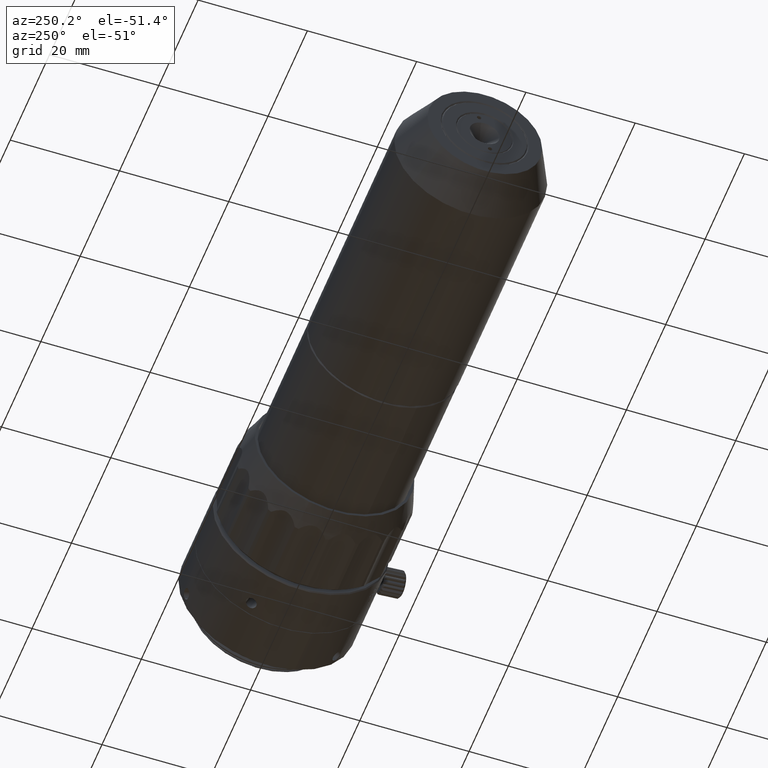
[diagram: clean part render]
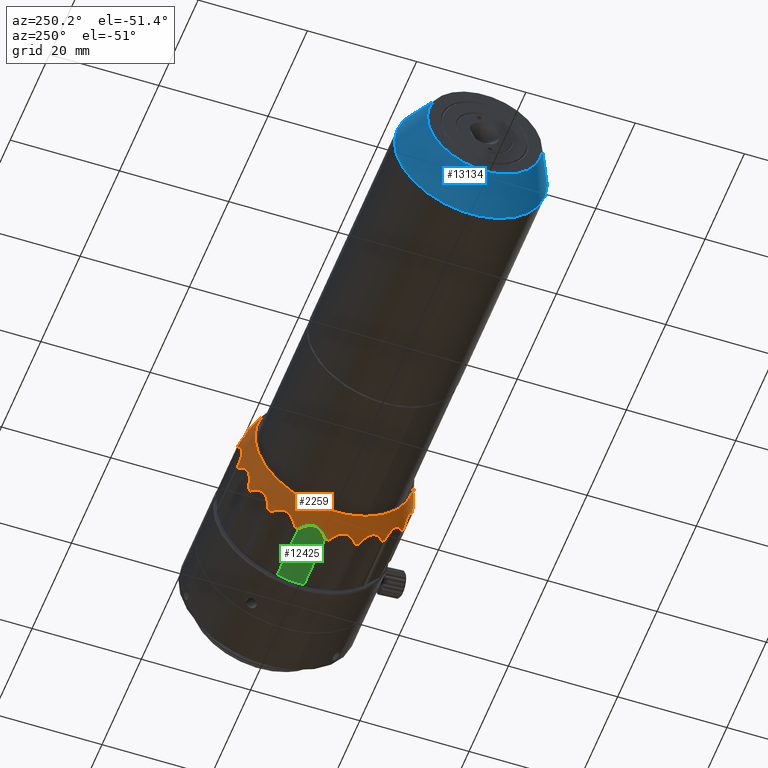
[diagram: same view with three faces highlighted in distinct colors, each labeled with its STEP entity id]
A machine part, auxiliary view with three faces highlighted in distinct colors.
Their STEP definitions:

[orange] entity #2259 — the highlighted conical surface has half-angle 17.745 deg.
#6 = CARTESIAN_POINT ( 'NONE',  ( 25.56698777001205514, -16.97978436126343027, 77.10833290373889781 ) ) ;
#12 = DIRECTION ( 'NONE',  ( 1.000000000000000000, -0.000000000000000000, 0.000000000000000000 ) ) ;
#16 = CARTESIAN_POINT ( 'NONE',  ( 24.20144253388969702, 1.718788005795630847, 88.85031635133947248 ) ) ;
#17 = CARTESIAN_POINT ( 'NONE',  ( 24.29682750974317784, -3.764600808231588047, 57.90504659459071490 ) ) ;
#22 = DIRECTION ( 'NONE',  ( 1.000000000000000000, -0.000000000000000000, 0.000000000000000000 ) ) ;
#68 = ORIENTED_EDGE ( 'NONE', *, *, #9915, .T. ) ;
#92 = CARTESIAN_POINT ( 'NONE',  ( 24.56251818497925399, -16.59730689109212776, 69.54930751035578851 ) ) ;
#109 = DIRECTION ( 'NONE',  ( 0.000000000000000000, -0.3188937762649045604, 0.9477904617896875106 ) ) ;
#112 = AXIS2_PLACEMENT_3D ( 'NONE', #8177, #23495, #23379 ) ;
#196 = CONICAL_SURFACE ( 'NONE', #15726, 16.19999999999933493, 0.3097029445423311600 ) ;
#218 = CARTESIAN_POINT ( 'NONE',  ( 24.20208820136316064, -16.18813210468135821, 68.55481615542052509 ) ) ;
#324 = CARTESIAN_POINT ( 'NONE',  ( 25.37743441865545435, -14.63892019846523240, 82.35961136773082103 ) ) ;
#335 = CARTESIAN_POINT ( 'NONE',  ( 25.56756979872729829, -17.14106791047710487, 70.53858369733063682 ) ) ;
#358 = CARTESIAN_POINT ( 'NONE',  ( 25.37743441865542948, -16.88441295904177153, 77.24751490140560861 ) ) ;
#411 = B_SPLINE_CURVE_WITH_KNOTS ( 'NONE', 3,
 ( #824, #8428, #4925, #15802, #14290, #21888, #6311, #10542, #2583, #10182, #4803, #6559, #17788, #21772, #18014, #14172, #12410, #16174, #23396, #21641, #18149, #1084 ),
 .UNSPECIFIED., .F., .F.,
 ( 4, 2, 2, 2, 2, 2, 2, 2, 2, 2, 4 ),
 ( -0.001090499994541693340, -0.0003295230244445891167, 0.0004314539456525151064, 0.001192430915749619329, 0.001572919400798175778, 0.001953407885846731792, 0.002333896370895287807, 0.002714384855943844255, 0.003475361826040973632, 0.004236338796138104310, 0.004997315766235233686 ),
 .UNSPECIFIED. ) ;
#477 = DIRECTION ( 'NONE',  ( 1.000000000000000000, -0.000000000000000000, 0.000000000000000000 ) ) ;
#490 = DIRECTION ( 'NONE',  ( 1.000000000000000000, -0.000000000000000000, 0.000000000000000000 ) ) ;
#508 = ORIENTED_EDGE ( 'NONE', *, *, #17607, .T. ) ;
#558 = CARTESIAN_POINT ( 'NONE',  ( 25.37886236187065236, -17.14087644639302610, 75.97852610390366124 ) ) ;
#569 = CARTESIAN_POINT ( 'NONE',  ( 24.56251818497925754, -12.29755786611169555, 84.77038026070040644 ) ) ;
#683 = DIRECTION ( 'NONE',  ( 0.000000000000000000, -0.3188937762648077490, 0.9477904617897200401 ) ) ;
#689 = CARTESIAN_POINT ( 'NONE',  ( 24.29682750974318139, -13.46642648174924162, 83.36590574116851826 ) ) ;
#821 = CARTESIAN_POINT ( 'NONE',  ( 24.21482652098152144, 6.023606465092014695, 59.52557067310106476 ) ) ;
#824 = CARTESIAN_POINT ( 'NONE',  ( 25.76425907758550693, -11.09893492198060549, 86.31036884957141808 ) ) ;
#841 = CARTESIAN_POINT ( 'NONE',  ( 25.56742212791086999, -5.942841276200557132, 88.88116345861439527 ) ) ;
#874 = CARTESIAN_POINT ( 'NONE',  ( 24.43572500525977631, 14.45136645662996067, 72.06540957647895596 ) ) ;
#886 = CARTESIAN_POINT ( 'NONE',  ( 25.76425907758549982, -15.32066270100027872, 65.38040127032572002 ) ) ;
#911 = CARTESIAN_POINT ( 'NONE',  ( 24.21390534560338992, 13.53695284327000614, 78.68134159711178199 ) ) ;
#966 = CIRCLE ( 'NONE', #16522, 16.19999999999933138 ) ;
#993 = CARTESIAN_POINT ( 'NONE',  ( 24.26164326499689849, 13.54481218219314087, 68.16744263641503210 ) ) ;
#1003 = CARTESIAN_POINT ( 'NONE',  ( 24.26349218467733948, 7.354028073080393746, 86.58256556956710881 ) ) ;
#1084 = CARTESIAN_POINT ( 'NONE',  ( 25.76425907758550693, -6.758325881491425768, 88.67655639693519731 ) ) ;
#1125 = CARTESIAN_POINT ( 'NONE',  ( 25.37886236187067013, 14.60968303848795813, 70.89377789609189051 ) ) ;
#1195 = VERTEX_POINT ( 'NONE', #16308 ) ;
#1206 = ORIENTED_EDGE ( 'NONE', *, *, #2823, .F. ) ;
#1230 = B_SPLINE_CURVE_WITH_KNOTS ( 'NONE', 3,
 ( #2449, #23263, #5823, #11434, #13661, #7939, #21271, #23022, #10048, #7825, #13541, #218, #8062, #2087, #15662, #22903, #92, #11546, #19037, #7695, #335, #6304 ),
 .UNSPECIFIED., .F., .F.,
 ( 4, 2, 2, 2, 2, 2, 2, 2, 2, 2, 4 ),
 ( 1.734723475976807094E-17, 0.0007603032413495251513, 0.001520606482699032955, 0.002280909724048540976, 0.002661061344723293035, 0.003041212965398045094, 0.003421364586072797587, 0.003801516206747548778, 0.004561819448097053330, 0.005322122689446558315, 0.006082425930796062433 ),
 .UNSPECIFIED. ) ;
#1325 = CARTESIAN_POINT ( 'NONE',  ( 24.43228681305928163, 11.19169971163425537, 63.75710841797673112 ) ) ;
#1343 = CARTESIAN_POINT ( 'NONE',  ( 24.26305087301678398, -4.113335672623865236, 88.89616376793075858 ) ) ;
#1368 = CARTESIAN_POINT ( 'NONE',  ( 24.55845473512663801, 13.85411723356884828, 68.79698352997981203 ) ) ;
#1389 = CARTESIAN_POINT ( 'NONE',  ( 24.26349218467731816, -4.869056247591023734, 58.13447887721931551 ) ) ;
#1434 = DIRECTION ( 'NONE',  ( 0.000000000000000000, -0.3188937762648218488, 0.9477904617897151551 ) ) ;
#1514 = CARTESIAN_POINT ( 'NONE',  ( 24.43572500525977276, 2.813543073405049277, 88.67631225045178667 ) ) ;
#1568 = CARTESIAN_POINT ( 'NONE',  ( 24.26164326499690560, 10.84963050550673636, 63.41972652002214517 ) ) ;
#1673 = CARTESIAN_POINT ( 'NONE',  ( 25.56756979872728053, -1.168795619220461823, 57.29870741766664821 ) ) ;
#1687 = DIRECTION ( 'NONE',  ( 1.000000000000000000, -0.000000000000000000, 0.000000000000000000 ) ) ;
#1690 = CARTESIAN_POINT ( 'NONE',  ( 25.37743441865544725, 12.10772679056019996, 64.51269263226471651 ) ) ;
#1692 = CARTESIAN_POINT ( 'NONE',  ( 24.29682750974316008, -16.99469722873739741, 73.20024246589913730 ) ) ;
#1737 = CARTESIAN_POINT ( 'NONE',  ( 24.26164326499690915, -16.07600559009818397, 78.70486136358053386 ) ) ;
#1753 = CARTESIAN_POINT ( 'NONE',  ( 24.29682750974316363, 1.233407400326598902, 88.96725740540466632 ) ) ;
#1780 = EDGE_CURVE ( 'NONE', #17029, #12281, #17133, .T. ) ;
#1784 = CIRCLE ( 'NONE', #7748, 16.19999999999933493 ) ;
#1800 = CARTESIAN_POINT ( 'NONE',  ( 24.85223538077675798, -8.140629207500571951, 59.08889551865132006 ) ) ;
#1828 = CARTESIAN_POINT ( 'NONE',  ( 25.02076952798816833, 11.82081897256660241, 64.29487126834470700 ) ) ;
#1884 = CARTESIAN_POINT ( 'NONE',  ( 25.76425907758550693, 3.571477165123652764, 57.97514568135601820 ) ) ;
#1890 = CARTESIAN_POINT ( 'NONE',  ( 24.55845473512663801, -3.208775008660120776, 57.74055734029139586 ) ) ;
#1896 = AXIS2_PLACEMENT_3D ( 'NONE', #12077, #21677, #15956 ) ;
#1900 = DIRECTION ( 'NONE',  ( 0.000000000000000000, -0.3188937762648598184, 0.9477904617897024986 ) ) ;
#1919 = CARTESIAN_POINT ( 'NONE',  ( 25.37743441865544369, -7.731235418812980598, 58.71645688136955243 ) ) ;
#1944 = EDGE_CURVE ( 'NONE', #9264, #12281, #1784, .T. ) ;
#1948 = CARTESIAN_POINT ( 'NONE',  ( 25.02076952798815768, -12.54043307536508323, 62.13591512321458055 ) ) ;
#2033 = CARTESIAN_POINT ( 'NONE',  ( 24.29682750974316363, -8.925843316820635920, 59.69639659980560253 ) ) ;
#2054 = VERTEX_POINT ( 'NONE', #2716 ) ;
#2060 = CARTESIAN_POINT ( 'NONE',  ( 25.37743441865544369, -17.24604597007656537, 71.67571181944494185 ) ) ;
#2068 = EDGE_CURVE ( 'NONE', #4550, #8368, #18307, .T. ) ;
#2087 = CARTESIAN_POINT ( 'NONE',  ( 24.26349218467730751, -16.31896412050341638, 68.90600294490886313 ) ) ;
#2242 = CARTESIAN_POINT ( 'NONE',  ( 25.76425907758551048, -17.07375787850606486, 76.97762630871676492 ) ) ;
#2259 = ADVANCED_FACE ( 'NONE', ( #4164, #4407 ), #196, .T. ) ;
#2376 = CARTESIAN_POINT ( 'NONE',  ( 25.76425907758549982, 12.78946929309524805, 81.49190272966960435 ) ) ;
#2421 = CARTESIAN_POINT ( 'NONE',  ( 24.20208820136316064, 13.65693869677626360, 78.31748784457491297 ) ) ;
#2437 = CARTESIAN_POINT ( 'NONE',  ( 25.56698777001205869, -14.77614304815724111, 82.26144201223416985 ) ) ;
#2449 = CARTESIAN_POINT ( 'NONE',  ( 25.76425907758551048, -15.65176653331619860, 65.98778857970962974 ) ) ;
#2493 = DIRECTION ( 'NONE',  ( 1.000000000000000000, -0.000000000000000000, 0.000000000000000000 ) ) ;
#2541 = CARTESIAN_POINT ( 'NONE',  ( 24.20144253388970412, 13.57565355729192902, 78.55868120236100083 ) ) ;
#2551 = CARTESIAN_POINT ( 'NONE',  ( 24.85831798173218488, -17.05042909191777767, 75.43889378333531681 ) ) ;
#2583 = CARTESIAN_POINT ( 'NONE',  ( 24.26179554023036644, -9.224940615744898764, 86.99188611918596337 ) ) ;
#2621 = CARTESIAN_POINT ( 'NONE',  ( 24.43572500525979052, 11.65539183382702149, 82.48877156503583308 ) ) ;
#2643 = VERTEX_POINT ( 'NONE', #3071 ) ;
#2685 = EDGE_CURVE ( 'NONE', #3598, #2054, #11353, .T. ) ;
#2716 = CARTESIAN_POINT ( 'NONE',  ( 25.76425907758549272, -1.316644924025428987, 57.23623242985152615 ) ) ;
#2744 = CARTESIAN_POINT ( 'NONE',  ( 24.85831798173219553, 8.361244751621033089, 86.10484695078615403 ) ) ;
#2823 = EDGE_CURVE ( 'NONE', #7606, #13632, #6990, .T. ) ;
#2846 = B_SPLINE_CURVE_WITH_KNOTS ( 'NONE', 3,
 ( #15840, #23315, #23553, #10457, #21325, #19933, #6468, #19564, #21445, #2861, #14076, #13717, #7987, #11852, #23439, #2621, #15585, #21684, #12213, #6601, #6356, #2376 ),
 .UNSPECIFIED., .F., .F.,
 ( 4, 2, 2, 2, 2, 2, 2, 2, 2, 2, 4 ),
 ( 0.000000000000000000, 0.0007603032413494874211, 0.001520606482698974842, 0.002280909724048462480, 0.002661061344723221912, 0.003041212965397981343, 0.003421364586072741208, 0.003801516206747501073, 0.004561819448097016901, 0.005322122689446533161, 0.006082425930796049422 ),
 .UNSPECIFIED. ) ;
#2861 = CARTESIAN_POINT ( 'NONE',  ( 24.21390534560341479, 10.85028937661514448, 83.42778807675503572 ) ) ;
#2894 = CIRCLE ( 'NONE', #5275, 16.19999999999933493 ) ;
#2998 = CARTESIAN_POINT ( 'NONE',  ( 24.20208820136318550, 7.028066417409152500, 86.76749305943071988 ) ) ;
#3071 = CARTESIAN_POINT ( 'NONE',  ( 25.76425907758551048, 14.80047125062194446, 75.51496427602772599 ) ) ;
#3073 = CARTESIAN_POINT ( 'NONE',  ( 24.43228681305927807, 7.130004939538894249, 60.08017986419804402 ) ) ;
#3109 = CARTESIAN_POINT ( 'NONE',  ( 24.43228681305927452, 13.75086068589533461, 68.60147247521672398 ) ) ;
#3191 = DIRECTION ( 'NONE',  ( 0.000000000000000000, -0.3188937762648211272, 0.9477904617897155992 ) ) ;
#3213 = CARTESIAN_POINT ( 'NONE',  ( 24.20187472005101625, -3.739585022263422154, 88.94056044249353477 ) ) ;
#3214 = VERTEX_POINT ( 'NONE', #4597 ) ;
#3234 = CARTESIAN_POINT ( 'NONE',  ( 25.02076952798815768, 14.15811368582966878, 69.32197571723334306 ) ) ;
#3315 = CARTESIAN_POINT ( 'NONE',  ( 24.21390534560340768, 10.67814550842535937, 63.23936284988216983 ) ) ;
#3424 = CARTESIAN_POINT ( 'NONE',  ( 24.29682750974315653, 1.698058476706130415, 57.98697711597169047 ) ) ;
#3444 = CARTESIAN_POINT ( 'NONE',  ( 24.43572500525978342, 9.893199342007816810, 62.28343320199151378 ) ) ;
#3492 = CARTESIAN_POINT ( 'NONE',  ( 24.26349218467730751, 13.17787543836883124, 67.23032945073123301 ) ) ;
#3537 = VERTEX_POINT ( 'NONE', #18427 ) ;
#3598 = VERTEX_POINT ( 'NONE', #22556 ) ;
#3631 = CARTESIAN_POINT ( 'NONE',  ( 24.26349218467730395, 2.337862839686041028, 88.73782512277610124 ) ) ;
#3632 = CARTESIAN_POINT ( 'NONE',  ( 24.29989527625920687, -4.991839703034839815, 58.15197670294405441 ) ) ;
#3633 = CARTESIAN_POINT ( 'NONE',  ( 25.76425907758550693, -1.214548483879553054, 89.63607157014391191 ) ) ;
#3653 = VERTEX_POINT ( 'NONE', #7710 ) ;
#3686 = CARTESIAN_POINT ( 'NONE',  ( 24.29989527625919266, 10.10776587964937612, 62.56704325359169161 ) ) ;
#3688 = CARTESIAN_POINT ( 'NONE',  ( 24.85223538077677219, -12.63306473328012558, 62.30554055818584658 ) ) ;
#3800 = CARTESIAN_POINT ( 'NONE',  ( 25.37743441865544369, 3.243074327931355416, 58.00417889534517002 ) ) ;
#3820 = CARTESIAN_POINT ( 'NONE',  ( 25.56698777001205514, -12.30289248253991552, 61.66335674080117712 ) ) ;
#3837 = VERTEX_POINT ( 'NONE', #22365 ) ;
#3982 = ORIENTED_EDGE ( 'NONE', *, *, #18673, .F. ) ;
#4009 = ORIENTED_EDGE ( 'NONE', *, *, #17616, .T. ) ;
#4027 = CARTESIAN_POINT ( 'NONE',  ( 25.76425907758550693, -11.63959907624299994, 85.87882352904203742 ) ) ;
#4079 = EDGE_CURVE ( 'NONE', #11549, #1195, #23335, .T. ) ;
#4164 = FACE_OUTER_BOUND ( 'NONE', #12845, .T. ) ;
#4173 = CARTESIAN_POINT ( 'NONE',  ( 24.20208820136314998, -16.95770828861691015, 73.95300442381049777 ) ) ;
#4232 = CARTESIAN_POINT ( 'NONE',  ( 24.43572500525978342, -15.56588948696139241, 80.09974653320325899 ) ) ;
#4308 = CARTESIAN_POINT ( 'NONE',  ( 25.76425907758551048, -14.90915355722250446, 82.17075882523998587 ) ) ;
#4354 = EDGE_CURVE ( 'NONE', #3653, #3837, #23735, .T. ) ;
#4407 = FACE_BOUND ( 'NONE', #16350, .T. ) ;
#4511 = EDGE_CURVE ( 'NONE', #3537, #11791, #23129, .T. ) ;
#4546 = CARTESIAN_POINT ( 'NONE',  ( 25.76425907758551048, -7.498326440498913392, 58.48312287439413382 ) ) ;
#4550 = VERTEX_POINT ( 'NONE', #11889 ) ;
#4597 = CARTESIAN_POINT ( 'NONE',  ( 25.76425907758550693, -17.33166465852704619, 71.35733972396781155 ) ) ;
#4611 = CARTESIAN_POINT ( 'NONE',  ( 24.20144253388970412, 14.43262482175803108, 73.17374834973583120 ) ) ;
#4650 = CARTESIAN_POINT ( 'NONE',  ( 25.76425907758549272, 14.69707411729040913, 76.19896582879925973 ) ) ;
#4718 = VERTEX_POINT ( 'NONE', #8893 ) ;
#4731 = CARTESIAN_POINT ( 'NONE',  ( 24.85223538077679351, 5.609435799595590133, 87.78340848134408247 ) ) ;
#4803 = CARTESIAN_POINT ( 'NONE',  ( 24.20150445495085734, -8.887462796621763417, 87.16242430807054120 ) ) ;
#4822 = CARTESIAN_POINT ( 'NONE',  ( 24.43175677174512472, -2.652630972405409349, 89.15040969008998673 ) ) ;
#4849 = CARTESIAN_POINT ( 'NONE',  ( 24.56251818497924333, 14.47087733236256035, 71.84483736942345899 ) ) ;
#4886 = CARTESIAN_POINT ( 'NONE',  ( 25.76425907758550693, -1.265596703952544866, 73.43615199999771903 ) ) ;
#4923 = CARTESIAN_POINT ( 'NONE',  ( 25.56698777001205869, 8.411737043607018904, 60.52221310215063710 ) ) ;
#4925 = CARTESIAN_POINT ( 'NONE',  ( 25.37703763627072462, -10.78008745376914668, 86.39549047509056834 ) ) ;
#4977 = CARTESIAN_POINT ( 'NONE',  ( 25.76425907758549982, 14.54256447060099156, 69.89467769127874419 ) ) ;
#4983 = CARTESIAN_POINT ( 'NONE',  ( 25.56756979872730540, 9.033198792526228260, 85.86037428630280033 ) ) ;
#5053 = DIRECTION ( 'NONE',  ( 1.000000000000000000, -0.000000000000000000, 0.000000000000000000 ) ) ;
#5055 = CARTESIAN_POINT ( 'NONE',  ( 25.02076952798815768, 7.905109393789381933, 60.37034018662861001 ) ) ;
#5096 = EDGE_CURVE ( 'NONE', #17029, #8577, #14986, .T. ) ;
#5102 = CARTESIAN_POINT ( 'NONE',  ( 25.37886236187068079, 8.873803727173992684, 85.91336049718265144 ) ) ;
#5275 = AXIS2_PLACEMENT_3D ( 'NONE', #6667, #8540, #1434 ) ;
#5301 = CARTESIAN_POINT ( 'NONE',  ( 25.76425907758550693, 9.108405668337997696, 60.99348047095345748 ) ) ;
#5410 = CARTESIAN_POINT ( 'NONE',  ( 25.76425907758549272, -1.316644924025428987, 57.23623242985152615 ) ) ;
#5492 = CARTESIAN_POINT ( 'NONE',  ( 24.43228681305927807, -3.419246122526096610, 57.80829505061621632 ) ) ;
#5549 = CARTESIAN_POINT ( 'NONE',  ( 24.43572500525979763, -14.18658524173205926, 64.38353243495954814 ) ) ;
#5671 = CARTESIAN_POINT ( 'NONE',  ( 25.76425907758551759, 12.37796014931747735, 64.70154517475553746 ) ) ;
#5673 = CARTESIAN_POINT ( 'NONE',  ( 25.76425907758550693, -17.33166465852704619, 71.35733972396781155 ) ) ;
#5734 = EDGE_CURVE ( 'NONE', #3214, #4718, #23751, .T. ) ;
#5801 = CARTESIAN_POINT ( 'NONE',  ( 25.02434504061426424, -14.78701314374638365, 64.94941608232170438 ) ) ;
#5823 = CARTESIAN_POINT ( 'NONE',  ( 25.37743441865543659, -15.68020095330389196, 66.31624380458887913 ) ) ;
#5860 = CARTESIAN_POINT ( 'NONE',  ( 24.21390534560340768, 1.593210630892261559, 88.87813074722728857 ) ) ;
#5874 = CARTESIAN_POINT ( 'NONE',  ( 25.76425907758551048, -15.65176653331619860, 65.98778857970962974 ) ) ;
#6002 = EDGE_CURVE ( 'NONE', #11775, #11775, #13822, .T. ) ;
#6044 = CARTESIAN_POINT ( 'NONE',  ( 24.21390534560342900, -13.20933891633037227, 83.63294115011336771 ) ) ;
#6082 = CARTESIAN_POINT ( 'NONE',  ( 24.21390534560341834, -15.97655041207733007, 78.93299909674890102 ) ) ;
#6143 = CARTESIAN_POINT ( 'NONE',  ( 25.76425907758549982, -15.26961448092735196, 81.58032084047196975 ) ) ;
#6229 = VERTEX_POINT ( 'NONE', #9185 ) ;
#6247 = VERTEX_POINT ( 'NONE', #16790 ) ;
#6276 = DIRECTION ( 'NONE',  ( 1.000000000000000000, 0.000000000000000000, 0.000000000000000000 ) ) ;
#6296 = CARTESIAN_POINT ( 'NONE',  ( 25.76425907758551759, 12.37796014931747735, 64.70154517475553746 ) ) ;
#6304 = CARTESIAN_POINT ( 'NONE',  ( 25.76425907758549982, -17.22826752519549842, 70.67333817119616413 ) ) ;
#6311 = CARTESIAN_POINT ( 'NONE',  ( 24.43009907341900444, -9.656444856212610617, 86.79422662788489617 ) ) ;
#6355 = EDGE_CURVE ( 'NONE', #15336, #8186, #11982, .T. ) ;
#6356 = CARTESIAN_POINT ( 'NONE',  ( 25.56756979872730540, 12.66143971414374114, 81.58870648965499583 ) ) ;
#6411 = CARTESIAN_POINT ( 'NONE',  ( 24.43228681305929584, -13.72289311953927715, 83.11519558201879931 ) ) ;
#6456 = ORIENTED_EDGE ( 'NONE', *, *, #9839, .T. ) ;
#6468 = CARTESIAN_POINT ( 'NONE',  ( 24.43228681305928518, 10.42958727858832013, 84.02344581206193652 ) ) ;
#6517 = CARTESIAN_POINT ( 'NONE',  ( 25.76425907758551048, -1.265596703952544866, 73.43615199999771903 ) ) ;
#6538 = AXIS2_PLACEMENT_3D ( 'NONE', #21044, #23156, #109 ) ;
#6543 = CARTESIAN_POINT ( 'NONE',  ( 25.76425907758549982, 9.186616078973951716, 85.81319720232310999 ) ) ;
#6559 = CARTESIAN_POINT ( 'NONE',  ( 24.20202190292437905, -8.665717637995335565, 87.28341901154774973 ) ) ;
#6601 = CARTESIAN_POINT ( 'NONE',  ( 25.37886236187067013, 12.52977969888196697, 81.69301356411936865 ) ) ;
#6609 = CARTESIAN_POINT ( 'NONE',  ( 24.85831798173217777, 14.51923568401270259, 71.43341021666023494 ) ) ;
#6630 = CARTESIAN_POINT ( 'NONE',  ( 25.76425907758549982, -11.71780948687896817, 61.05910679767225702 ) ) ;
#6641 = ORIENTED_EDGE ( 'NONE', *, *, #13052, .F. ) ;
#6667 = CARTESIAN_POINT ( 'NONE',  ( 25.76425907758550693, -1.265596703952544866, 73.43615199999771903 ) ) ;
#6695 = B_SPLINE_CURVE_WITH_KNOTS ( 'NONE', 3,
 ( #22007, #4923, #10294, #5055, #12665, #12538, #3073, #10792, #24139, #18267, #8805, #16416, #821, #8425, #14169, #21769, #19886, #22519, #24380, #11278, #10917, #9179 ),
 .UNSPECIFIED., .F., .F.,
 ( 4, 2, 2, 2, 2, 2, 2, 2, 2, 2, 4 ),
 ( 3.878959614448864246E-18, 0.0007603032413495199471, 0.001520606482699035991, 0.002280909724048554420, 0.002661061344723312117, 0.003041212965398070248, 0.003421364586072827944, 0.003801516206747586508, 0.004561819448097085422, 0.005322122689446585203, 0.006082425930796084984 ),
 .UNSPECIFIED. ) ;
#6725 = CARTESIAN_POINT ( 'NONE',  ( 25.02076952798814347, 14.63508129636287869, 74.84531054459854715 ) ) ;
#6824 = CARTESIAN_POINT ( 'NONE',  ( 24.55717151185357849, -2.439423576193042287, 89.20755488754416263 ) ) ;
#6844 = CARTESIAN_POINT ( 'NONE',  ( 24.20208820136316064, 13.30339081663499279, 67.58345133803628357 ) ) ;
#6850 = CARTESIAN_POINT ( 'NONE',  ( 24.43228681305926386, 14.49881527963279382, 74.02897023541585497 ) ) ;
#6990 = CIRCLE ( 'NONE', #8995, 16.19999999999933493 ) ;
#7062 = CARTESIAN_POINT ( 'NONE',  ( 24.21482652098151789, 10.34171274457645318, 62.85753568887722764 ) ) ;
#7101 = CARTESIAN_POINT ( 'NONE',  ( 25.56756979872729829, 12.75824079887577156, 65.45126190732409555 ) ) ;
#7126 = CARTESIAN_POINT ( 'NONE',  ( 24.85831798173218843, -5.978919718412964990, 58.23889914534533574 ) ) ;
#7180 = CARTESIAN_POINT ( 'NONE',  ( 24.55845473512663801, 11.35559784650270920, 63.90551289418508674 ) ) ;
#7286 = CARTESIAN_POINT ( 'NONE',  ( 24.21482652098150368, 0.8263147062393128017, 57.87142706366414302 ) ) ;
#7326 = VERTEX_POINT ( 'NONE', #19948 ) ;
#7371 = CARTESIAN_POINT ( 'NONE',  ( 24.29989527625919266, 2.460646295129857108, 88.72032729705136944 ) ) ;
#7440 = CARTESIAN_POINT ( 'NONE',  ( 25.56756979872730895, 9.181506658619957406, 61.13637478943257264 ) ) ;
#7481 = DIRECTION ( 'NONE',  ( 1.000000000000000000, -0.000000000000000000, 0.000000000000000000 ) ) ;
#7496 = ORIENTED_EDGE ( 'NONE', *, *, #17480, .T. ) ;
#7497 = CARTESIAN_POINT ( 'NONE',  ( 25.76425907758549272, 4.323071745000024002, 88.64163735784343601 ) ) ;
#7525 = CARTESIAN_POINT ( 'NONE',  ( 24.26349218467731461, -9.885221480985391551, 60.28973843042827241 ) ) ;
#7530 = CARTESIAN_POINT ( 'NONE',  ( 25.56698777001205869, 3.411295174771030503, 57.99117583706006940 ) ) ;
#7549 = CARTESIAN_POINT ( 'NONE',  ( 24.20144253388970412, 10.59126884754391007, 63.14451685101919765 ) ) ;
#7606 = VERTEX_POINT ( 'NONE', #1884 ) ;
#7617 = CARTESIAN_POINT ( 'NONE',  ( 24.26164326499690560, -3.882462019995561064, 57.93584472399773233 ) ) ;
#7654 = CARTESIAN_POINT ( 'NONE',  ( 24.26164326499689139, 1.576771585100694484, 57.97560698236940624 ) ) ;
#7672 = CARTESIAN_POINT ( 'NONE',  ( 24.20144253388972544, -13.45980188569876823, 63.54654256729372008 ) ) ;
#7679 = B_SPLINE_CURVE_WITH_KNOTS ( 'NONE', 3,
 ( #5673, #13280, #2060, #24516, #20887, #9663, #17272, #1692, #9303, #11416, #12016, #4173, #14143, #8284, #15887, #14014, #19746, #2551, #11897, #558, #19375, #10153 ),
 .UNSPECIFIED., .F., .F.,
 ( 4, 2, 2, 2, 2, 2, 2, 2, 2, 2, 4 ),
 ( 0.000000000000000000, 0.0007603032413495212482, 0.001520606482699042496, 0.002280909724048563528, 0.002661061344723324260, 0.003041212965398084993, 0.003421364586072845725, 0.003801516206747606458, 0.004561819448097088892, 0.005322122689446571325, 0.006082425930796053759 ),
 .UNSPECIFIED. ) ;
#7695 = CARTESIAN_POINT ( 'NONE',  ( 25.37886236187067368, -17.05302308624124308, 70.39553673187063509 ) ) ;
#7710 = CARTESIAN_POINT ( 'NONE',  ( 25.76425907758550693, 8.567741514075610354, 60.56193515042409814 ) ) ;
#7725 = CARTESIAN_POINT ( 'NONE',  ( 24.20208820136317129, -15.83458422454004122, 79.28885266195922554 ) ) ;
#7748 = AXIS2_PLACEMENT_3D ( 'NONE', #12062, #477, #23531 ) ;
#7825 = CARTESIAN_POINT ( 'NONE',  ( 24.21390534560340413, -16.06814625117509365, 68.19096240288361344 ) ) ;
#7852 = CARTESIAN_POINT ( 'NONE',  ( 25.76425907758549982, -15.26961448092735196, 81.58032084047196975 ) ) ;
#7864 = CARTESIAN_POINT ( 'NONE',  ( 25.76425907758549982, -6.854265152904989833, 58.23066664215195942 ) ) ;
#7929 = CARTESIAN_POINT ( 'NONE',  ( 25.76425907758550693, -11.63959907624299994, 85.87882352904203742 ) ) ;
#7939 = CARTESIAN_POINT ( 'NONE',  ( 24.55845473512663801, -15.82996955911532311, 67.27119644610404237 ) ) ;
#7987 = CARTESIAN_POINT ( 'NONE',  ( 24.21482652098153565, 11.16789478873362107, 83.03016289185708843 ) ) ;
#8043 = DIRECTION ( 'NONE',  ( 1.000000000000000000, -0.000000000000000000, 0.000000000000000000 ) ) ;
#8062 = CARTESIAN_POINT ( 'NONE',  ( 24.21482652098151434, -16.23060189053580515, 68.67323530354465788 ) ) ;
#8151 = DIRECTION ( 'NONE',  ( 0.000000000000000000, 0.3188937762648219043, -0.9477904617897151551 ) ) ;
#8172 = CARTESIAN_POINT ( 'NONE',  ( 24.85831798173218132, -12.07014223658683250, 85.11663589408853170 ) ) ;
#8177 = CARTESIAN_POINT ( 'NONE',  ( 25.76425907758550693, -1.265596703952544866, 73.43615199999771903 ) ) ;
#8186 = VERTEX_POINT ( 'NONE', #15858 ) ;
#8204 = B_SPLINE_CURVE_WITH_KNOTS ( 'NONE', 3,
 ( #4308, #2437, #324, #21622, #13529, #11651, #6411, #689, #8291, #6044, #10036, #15894, #23493, #17766, #21133, #19252, #569, #8172, #21497, #17412, #19627, #7929 ),
 .UNSPECIFIED., .F., .F.,
 ( 4, 2, 2, 2, 2, 2, 2, 2, 2, 2, 4 ),
 ( 0.000000000000000000, 0.0007603032413494749528, 0.001520606482698949906, 0.002280909724048424750, 0.002661061344723179411, 0.003041212965397933638, 0.003421364586072687865, 0.003801516206747442526, 0.004561819448096979604, 0.005322122689446516682, 0.006082425930796053759 ),
 .UNSPECIFIED. ) ;
#8212 = ORIENTED_EDGE ( 'NONE', *, *, #22659, .T. ) ;
#8275 = CARTESIAN_POINT ( 'NONE',  ( 25.37743441865541882, 13.14900754539880268, 80.55606019540655893 ) ) ;
#8284 = CARTESIAN_POINT ( 'NONE',  ( 24.26349218467729685, -16.96053721237255374, 74.32775924321322236 ) ) ;
#8286 = CARTESIAN_POINT ( 'NONE',  ( 25.76425907758550693, -1.265596703952544866, 73.43615199999771903 ) ) ;
#8291 = CARTESIAN_POINT ( 'NONE',  ( 24.26164326499691626, -13.38082391341175281, 83.45257747997342790 ) ) ;
#8368 = VERTEX_POINT ( 'NONE', #3633 ) ;
#8425 = CARTESIAN_POINT ( 'NONE',  ( 24.26349218467730751, 5.809719027434653960, 59.39813118721278329 ) ) ;
#8428 = CARTESIAN_POINT ( 'NONE',  ( 25.56686378420734229, -10.94283240207923846, 86.35011586331089006 ) ) ;
#8477 = CARTESIAN_POINT ( 'NONE',  ( 24.21390534560338992, 14.43821037216553016, 73.30224784130243165 ) ) ;
#8495 = ORIENTED_EDGE ( 'NONE', *, *, #2068, .T. ) ;
#8540 = DIRECTION ( 'NONE',  ( 1.000000000000000000, -0.000000000000000000, 0.000000000000000000 ) ) ;
#8577 = VERTEX_POINT ( 'NONE', #19073 ) ;
#8605 = CARTESIAN_POINT ( 'NONE',  ( 25.02076952798816833, 5.464375198621111984, 87.91112235796757091 ) ) ;
#8633 = EDGE_CURVE ( 'NONE', #11549, #11664, #15224, .T. ) ;
#8685 = ORIENTED_EDGE ( 'NONE', *, *, #24661, .T. ) ;
#8724 = CARTESIAN_POINT ( 'NONE',  ( 25.56698777001204803, 5.079535570723400006, 88.27393831520821266 ) ) ;
#8805 = CARTESIAN_POINT ( 'NONE',  ( 24.20144253388971123, 6.356265831730172344, 59.70989153936569949 ) ) ;
#8847 = CARTESIAN_POINT ( 'NONE',  ( 24.20144253388970768, 13.39615888914844533, 67.82046524999769588 ) ) ;
#8852 = CARTESIAN_POINT ( 'NONE',  ( 25.76425907758549272, 14.67934525651283728, 70.57279280538578803 ) ) ;
#8893 = CARTESIAN_POINT ( 'NONE',  ( 25.76425907758549982, -17.22826752519549842, 70.67333817119616413 ) ) ;
#8915 = CIRCLE ( 'NONE', #22852, 16.19999999999933493 ) ;
#8939 = CIRCLE ( 'NONE', #22864, 16.19999999999932427 ) ;
#8943 = EDGE_CURVE ( 'NONE', #12586, #23856, #11250, .T. ) ;
#8961 = VERTEX_POINT ( 'NONE', #18891 ) ;
#8973 = B_SPLINE_CURVE_WITH_KNOTS ( 'NONE', 3,
 ( #22580, #24443, #22944, #9494, #16729, #18582, #22451, #1753, #22697, #5860, #16, #18958, #19071, #3631, #7371, #1514, #11219, #18819, #20585, #17218, #13460, #7497 ),
 .UNSPECIFIED., .F., .F.,
 ( 4, 2, 2, 2, 2, 2, 2, 2, 2, 2, 4 ),
 ( 4.272637039144575748E-18, 0.0007603032413495075872, 0.001520606482699011055, 0.002280909724048514522, 0.002661061344723270484, 0.003041212965398027313, 0.003421364586072782842, 0.003801516206747538370, 0.004561819448097045523, 0.005322122689446553111, 0.006082425930796060698 ),
 .UNSPECIFIED. ) ;
#8984 = CARTESIAN_POINT ( 'NONE',  ( 24.29682750974317074, 13.59560880345185296, 68.27816523249249769 ) ) ;
#8995 = AXIS2_PLACEMENT_3D ( 'NONE', #15265, #1687, #9298 ) ;
#9006 = CARTESIAN_POINT ( 'NONE',  ( 24.43572500525977986, -5.344736481310027543, 58.19599174954357323 ) ) ;
#9073 = EDGE_CURVE ( 'NONE', #3214, #8577, #7679, .T. ) ;
#9080 = CARTESIAN_POINT ( 'NONE',  ( 24.29741290821042909, -2.999164435190427636, 89.07138915261452894 ) ) ;
#9151 = ORIENTED_EDGE ( 'NONE', *, *, #10309, .T. ) ;
#9179 = CARTESIAN_POINT ( 'NONE',  ( 25.76425907758549982, 4.227132473586432404, 58.19574760306027628 ) ) ;
#9182 = CARTESIAN_POINT ( 'NONE',  ( 24.20208820136317840, -13.61867791825094010, 63.74538903073122498 ) ) ;
#9185 = CARTESIAN_POINT ( 'NONE',  ( 25.76425907758549982, 9.705490601524909167, 85.35568400992032423 ) ) ;
#9264 = VERTEX_POINT ( 'NONE', #18070 ) ;
#9298 = DIRECTION ( 'NONE',  ( 0.000000000000000000, -0.3188937762648218488, 0.9477904617897151551 ) ) ;
#9303 = CARTESIAN_POINT ( 'NONE',  ( 24.26164326499689494, -16.98483337675954274, 73.32166114007078761 ) ) ;
#9342 = B_SPLINE_CURVE_WITH_KNOTS ( 'NONE', 3,
 ( #20327, #11221, #22581, #11350, #18704, #1890, #5492, #17, #7617, #10853, #18452, #20704, #16980, #1389, #3632, #9006, #16619, #7126, #22327, #12847, #20450, #7864 ),
 .UNSPECIFIED., .F., .F.,
 ( 4, 2, 2, 2, 2, 2, 2, 2, 2, 2, 4 ),
 ( 3.878959614448864246E-18, 0.0007603032413495067199, 0.001520606482699009537, 0.002280909724048512353, 0.002661061344723262678, 0.003041212965398012568, 0.003421364586072762459, 0.003801516206747512783, 0.004561819448097017768, 0.005322122689446522753, 0.006082425930796028606 ),
 .UNSPECIFIED. ) ;
#9373 = DIRECTION ( 'NONE',  ( 0.000000000000000000, -0.3188937762648152985, 0.9477904617897174866 ) ) ;
#9410 = CARTESIAN_POINT ( 'NONE',  ( 24.20144253388971478, -9.341955693980446895, 59.97229518962760864 ) ) ;
#9421 = CARTESIAN_POINT ( 'NONE',  ( 24.85223538077676153, 2.690061549646528771, 58.02633018898669803 ) ) ;
#9438 = CARTESIAN_POINT ( 'NONE',  ( 24.26349218467730751, 10.18431116895988353, 62.66462793230816430 ) ) ;
#9440 = CARTESIAN_POINT ( 'NONE',  ( 24.26164326499691271, -13.23363730104501101, 63.24431634595217844 ) ) ;
#9494 = CARTESIAN_POINT ( 'NONE',  ( 25.02076952798815768, 0.1077767945247304626, 89.33996078617273895 ) ) ;
#9553 = CARTESIAN_POINT ( 'NONE',  ( 24.55845473512664157, -12.84309142018457095, 62.66167986715952054 ) ) ;
#9583 = DIRECTION ( 'NONE',  ( 0.000000000000000000, -0.3188937762648218488, 0.9477904617897151551 ) ) ;
#9626 = ORIENTED_EDGE ( 'NONE', *, *, #4511, .T. ) ;
#9639 = CARTESIAN_POINT ( 'NONE',  ( 24.26164326499690205, -9.026063047158180197, 59.76564828328340440 ) ) ;
#9663 = CARTESIAN_POINT ( 'NONE',  ( 24.55845473512664157, -17.06016938446270004, 72.62429764990208980 ) ) ;
#9829 = CARTESIAN_POINT ( 'NONE',  ( 25.76425907758550693, -1.265596703952544866, 73.43615199999771903 ) ) ;
#9839 = EDGE_CURVE ( 'NONE', #6229, #17451, #2846, .T. ) ;
#9905 = CARTESIAN_POINT ( 'NONE',  ( 25.76425907758551048, 13.12057312541110576, 80.88451542028579411 ) ) ;
#9915 = EDGE_CURVE ( 'NONE', #20968, #7326, #20690, .T. ) ;
#10036 = CARTESIAN_POINT ( 'NONE',  ( 24.20144253388971833, -13.12246225544893186, 83.72778714897633279 ) ) ;
#10048 = CARTESIAN_POINT ( 'NONE',  ( 24.26164326499690205, -15.99768922945478700, 67.95227020397329909 ) ) ;
#10142 = CARTESIAN_POINT ( 'NONE',  ( 24.56251818497924333, 14.06611348318703669, 77.32299648963960692 ) ) ;
#10153 = CARTESIAN_POINT ( 'NONE',  ( 25.76425907758549982, -17.21053866441790703, 76.29951119460974951 ) ) ;
#10182 = CARTESIAN_POINT ( 'NONE',  ( 24.21393365617231552, -9.001804678590634268, 87.10285968941646217 ) ) ;
#10228 = CARTESIAN_POINT ( 'NONE',  ( 24.43572500525981539, 7.779982637151130476, 86.36207015564690437 ) ) ;
#10294 = CARTESIAN_POINT ( 'NONE',  ( 25.37743441865544014, 8.249213847311068548, 60.47689706192235093 ) ) ;
#10309 = EDGE_CURVE ( 'NONE', #9264, #12544, #8204, .T. ) ;
#10342 = CARTESIAN_POINT ( 'NONE',  ( 24.20208820136315708, 14.42651488071182619, 72.91929957618501135 ) ) ;
#10362 = CARTESIAN_POINT ( 'NONE',  ( 25.37886236187067368, -11.40499713507900381, 60.95894350281271556 ) ) ;
#10376 = CARTESIAN_POINT ( 'NONE',  ( 25.02076952798812925, 13.19419247104371529, 80.19868005451971271 ) ) ;
#10395 = CARTESIAN_POINT ( 'NONE',  ( 25.76425907758549272, 14.69707411729040913, 76.19896582879925973 ) ) ;
#10457 = CARTESIAN_POINT ( 'NONE',  ( 25.02076952798815412, 10.00923966746006677, 84.73638887678077936 ) ) ;
#10461 = CARTESIAN_POINT ( 'NONE',  ( 25.76425907758550693, 4.967133032593943121, 88.38918112560124030 ) ) ;
#10464 = CARTESIAN_POINT ( 'NONE',  ( 25.56756979872729829, 14.64349316649185795, 70.72924461481908054 ) ) ;
#10484 = CARTESIAN_POINT ( 'NONE',  ( 24.85831798173218132, -10.89243815952603889, 60.76745704920920588 ) ) ;
#10542 = CARTESIAN_POINT ( 'NONE',  ( 24.29685112927490920, -9.334242597437336642, 86.94011668154567474 ) ) ;
#10596 = CARTESIAN_POINT ( 'NONE',  ( 25.76425907758551048, 14.80047125062194446, 75.51496427602772599 ) ) ;
#10608 = EDGE_CURVE ( 'NONE', #7606, #2054, #18867, .T. ) ;
#10622 = AXIS2_PLACEMENT_3D ( 'NONE', #12613, #14472, #12984 ) ;
#10689 = ORIENTED_EDGE ( 'NONE', *, *, #1780, .T. ) ;
#10714 = CARTESIAN_POINT ( 'NONE',  ( 24.85223538077675087, 14.59700813527836694, 74.65582744075466337 ) ) ;
#10792 = CARTESIAN_POINT ( 'NONE',  ( 24.29682750974317429, 6.803257207964249709, 59.93230613390422690 ) ) ;
#10853 = CARTESIAN_POINT ( 'NONE',  ( 24.21390534560341479, -4.124404038797242933, 57.99417325276810686 ) ) ;
#10915 = EDGE_CURVE ( 'NONE', #11660, #7326, #22812, .T. ) ;
#10917 = CARTESIAN_POINT ( 'NONE',  ( 25.56756979872730540, 4.344697670013183632, 58.30502232851385003 ) ) ;
#11022 = CARTESIAN_POINT ( 'NONE',  ( 25.02434504061424647, -0.6765760239321700897, 57.48289390914970909 ) ) ;
#11037 = CARTESIAN_POINT ( 'NONE',  ( 24.85831798173217777, 9.538948828681812486, 61.75566810590694899 ) ) ;
#11082 = CARTESIAN_POINT ( 'NONE',  ( 25.56698777001205869, 14.44859095335836585, 69.76397109625666815 ) ) ;
#11141 = CARTESIAN_POINT ( 'NONE',  ( 24.43228681305926386, 2.055676703354560431, 58.01417866315239280 ) ) ;
#11176 = VERTEX_POINT ( 'NONE', #5874 ) ;
#11219 = CARTESIAN_POINT ( 'NONE',  ( 24.56251818497923622, 3.034152321027967059, 88.65722475034215222 ) ) ;
#11221 = CARTESIAN_POINT ( 'NONE',  ( 25.56698777001205869, -2.153248878211972084, 57.32303064079125932 ) ) ;
#11250 = B_SPLINE_CURVE_WITH_KNOTS ( 'NONE', 3,
 ( #22881, #3820, #22753, #1948, #3688, #9553, #11641, #14911, #9440, #16916, #7672, #9182, #22524, #13522, #15270, #5549, #15042, #21124, #5801, #23005, #13157, #16787 ),
 .UNSPECIFIED., .F., .F.,
 ( 4, 2, 2, 2, 2, 2, 2, 2, 2, 2, 4 ),
 ( 0.000000000000000000, 0.0007603032413495260187, 0.001520606482699052037, 0.002280909724048578273, 0.002661061344723324694, 0.003041212965398071549, 0.003421364586072818403, 0.003801516206747564824, 0.004561819448097054197, 0.005322122689446544437, 0.006082425930796033810 ),
 .UNSPECIFIED. ) ;
#11278 = CARTESIAN_POINT ( 'NONE',  ( 25.37886236187067013, 4.470282607361515836, 58.41656939890683020 ) ) ;
#11285 = B_SPLINE_CURVE_WITH_KNOTS ( 'NONE', 3,
 ( #10596, #18190, #12593, #6725, #10714, #21691, #6850, #21816, #18313, #8477, #4611, #10342, #14331, #21934, #17947, #874, #4849, #6609, #14215, #1125, #10464, #8852 ),
 .UNSPECIFIED., .F., .F.,
 ( 4, 2, 2, 2, 2, 2, 2, 2, 2, 2, 4 ),
 ( 1.743375517060540341E-17, 0.0007603032413495378365, 0.001520606482699058109, 0.002280909724048578273, 0.002661061344723339873, 0.003041212965398101473, 0.003421364586072863073, 0.003801516206747625106, 0.004561819448097105371, 0.005322122689446586938, 0.006082425930796068504 ),
 .UNSPECIFIED. ) ;
#11350 = CARTESIAN_POINT ( 'NONE',  ( 25.02076952798815768, -2.638970202429723244, 57.53234321382268490 ) ) ;
#11353 = CIRCLE ( 'NONE', #17716, 16.19999999999932783 ) ;
#11366 = CARTESIAN_POINT ( 'NONE',  ( 25.76425907758550693, -1.265596703952544866, 73.43615199999771903 ) ) ;
#11416 = CARTESIAN_POINT ( 'NONE',  ( 24.21390534560338992, -16.96940378007062833, 73.57005615869309167 ) ) ;
#11434 = CARTESIAN_POINT ( 'NONE',  ( 25.02076952798815412, -15.72538587894880813, 66.67362394547569693 ) ) ;
#11441 = CARTESIAN_POINT ( 'NONE',  ( 25.76425907758550693, -1.265596703952544866, 73.43615199999771903 ) ) ;
#11521 = VERTEX_POINT ( 'NONE', #6543 ) ;
#11532 = CARTESIAN_POINT ( 'NONE',  ( 25.76425907758549982, 4.227132473586432404, 58.19574760306027628 ) ) ;
#11546 = CARTESIAN_POINT ( 'NONE',  ( 24.85831798173218843, -16.78346525104729636, 69.91938303943605604 ) ) ;
#11549 = VERTEX_POINT ( 'NONE', #4546 ) ;
#11565 = ORIENTED_EDGE ( 'NONE', *, *, #18529, .F. ) ;
#11604 = ORIENTED_EDGE ( 'NONE', *, *, #16527, .T. ) ;
#11641 = CARTESIAN_POINT ( 'NONE',  ( 24.43228681305928163, -12.96078068649334725, 62.84885818793343759 ) ) ;
#11651 = CARTESIAN_POINT ( 'NONE',  ( 24.55845473512664867, -13.88679125440773809, 82.96679110581044370 ) ) ;
#11657 = EDGE_CURVE ( 'NONE', #11176, #23856, #14839, .T. ) ;
#11660 = VERTEX_POINT ( 'NONE', #6296 ) ;
#11664 = VERTEX_POINT ( 'NONE', #24247 ) ;
#11694 = CARTESIAN_POINT ( 'NONE',  ( 25.37886236187068079, -15.31393677543050202, 81.25486763755995412 ) ) ;
#11775 = VERTEX_POINT ( 'NONE', #19374 ) ;
#11791 = VERTEX_POINT ( 'NONE', #10395 ) ;
#11817 = EDGE_CURVE ( 'NONE', #2643, #11791, #2894, .T. ) ;
#11852 = CARTESIAN_POINT ( 'NONE',  ( 24.26349218467732527, 11.33053934625132264, 82.84165451946752512 ) ) ;
#11889 = CARTESIAN_POINT ( 'NONE',  ( 25.76425907758550693, -6.102670573028641243, 88.89715831863945539 ) ) ;
#11897 = CARTESIAN_POINT ( 'NONE',  ( 25.02434504061424647, -17.07877132531806907, 75.62633406295515215 ) ) ;
#11982 = CIRCLE ( 'NONE', #13174, 16.19999999999932427 ) ;
#12007 = CARTESIAN_POINT ( 'NONE',  ( 24.21482652098151078, 13.69940848263071231, 78.19906869645075176 ) ) ;
#12016 = CARTESIAN_POINT ( 'NONE',  ( 24.20144253388969702, -16.96381822966312214, 73.69855565025966371 ) ) ;
#12062 = CARTESIAN_POINT ( 'NONE',  ( 25.76425907758550693, -1.265596703952544866, 73.43615199999771903 ) ) ;
#12077 = CARTESIAN_POINT ( 'NONE',  ( 20.76425907758650169, -1.265596703952544866, 73.43615199999771903 ) ) ;
#12213 = CARTESIAN_POINT ( 'NONE',  ( 25.02434504061425713, 12.25581973584135120, 81.92288791767364842 ) ) ;
#12251 = CARTESIAN_POINT ( 'NONE',  ( 24.85831798173217777, 14.25227184314219464, 76.95292096055939624 ) ) ;
#12281 = VERTEX_POINT ( 'NONE', #6143 ) ;
#12338 = CARTESIAN_POINT ( 'NONE',  ( 24.21482652098155341, 7.136718522027249101, 86.70407778118459419 ) ) ;
#12374 = CARTESIAN_POINT ( 'NONE',  ( 25.37886236187065592, 14.52182967833615201, 76.47676726812481718 ) ) ;
#12410 = CARTESIAN_POINT ( 'NONE',  ( 24.56135207048770752, -7.757292384982687139, 87.85887431701424077 ) ) ;
#12431 = CARTESIAN_POINT ( 'NONE',  ( 25.02018061819503458, -1.858814076941748716, 89.38793762686611899 ) ) ;
#12538 = CARTESIAN_POINT ( 'NONE',  ( 24.55845473512664157, 7.334776127658301448, 60.16357799180408961 ) ) ;
#12544 = VERTEX_POINT ( 'NONE', #4027 ) ;
#12566 = ORIENTED_EDGE ( 'NONE', *, *, #4079, .T. ) ;
#12586 = VERTEX_POINT ( 'NONE', #17615 ) ;
#12593 = CARTESIAN_POINT ( 'NONE',  ( 25.37743441865542238, 14.71485256217145654, 75.19659218055055305 ) ) ;
#12613 = CARTESIAN_POINT ( 'NONE',  ( 25.76425907758550693, -1.265596703952544866, 73.43615199999771903 ) ) ;
#12665 = CARTESIAN_POINT ( 'NONE',  ( 24.85223538077677574, 7.721975631730389367, 60.30857095940823598 ) ) ;
#12785 = ORIENTED_EDGE ( 'NONE', *, *, #5096, .F. ) ;
#12845 = EDGE_LOOP ( 'NONE', ( #8685, #21796, #8495, #6641, #22845, #22840, #508, #17292, #6456, #15476, #9626, #13806, #4009, #11565, #68, #21346, #7496, #18142, #8212, #1206, #15948, #18266, #16970, #23538, #12566, #18258, #15000, #20086, #11604, #23399, #22031, #12785, #10689, #18330, #9151, #3982 ) ) ;
#12847 = CARTESIAN_POINT ( 'NONE',  ( 25.37886236187065947, -6.526059829764059295, 58.24353205849551074 ) ) ;
#12936 = VERTEX_POINT ( 'NONE', #24582 ) ;
#12958 = CARTESIAN_POINT ( 'NONE',  ( 24.43572500525977276, 13.03469607905634930, 66.77255746679226434 ) ) ;
#12984 = DIRECTION ( 'NONE',  ( 0.000000000000000000, -0.3188937762648059171, 0.9477904617897204842 ) ) ;
#13052 = EDGE_CURVE ( 'NONE', #8961, #8368, #22443, .T. ) ;
#13157 = CARTESIAN_POINT ( 'NONE',  ( 25.56756979872730184, -15.19263312204877181, 65.28359751034031433 ) ) ;
#13174 = AXIS2_PLACEMENT_3D ( 'NONE', #8286, #8043, #683 ) ;
#13278 = CARTESIAN_POINT ( 'NONE',  ( 24.20208820136316064, 10.42303184221926671, 62.95352517638255563 ) ) ;
#13280 = CARTESIAN_POINT ( 'NONE',  ( 25.56698777001205869, -17.28806272618792406, 71.51230458263430023 ) ) ;
#13331 = CARTESIAN_POINT ( 'NONE',  ( 24.56251818497925754, -15.50878357504161009, 80.31368972103823012 ) ) ;
#13351 = CARTESIAN_POINT ( 'NONE',  ( 25.76425907758550693, -1.265596703952544866, 73.43615199999771903 ) ) ;
#13389 = CARTESIAN_POINT ( 'NONE',  ( 24.26349218467729685, 0.5817393881650319010, 57.82482693126131323 ) ) ;
#13440 = DIRECTION ( 'NONE',  ( 0.000000000000000000, -0.3188937762648204055, 0.9477904617897158213 ) ) ;
#13450 = CARTESIAN_POINT ( 'NONE',  ( 24.20144253388972189, -15.92735229705349198, 79.05183874999784166 ) ) ;
#13460 = CARTESIAN_POINT ( 'NONE',  ( 25.56756979872729474, 4.162771139999666303, 88.63349751322988368 ) ) ;
#13468 = DIRECTION ( 'NONE',  ( 0.000000000000000000, -0.3188937762647857110, 0.9477904617897273676 ) ) ;
#13522 = CARTESIAN_POINT ( 'NONE',  ( 24.26349218467733238, -13.86173275415634798, 64.03064948052785610 ) ) ;
#13529 = CARTESIAN_POINT ( 'NONE',  ( 24.85223538077677574, -14.20104925559505560, 82.69811225420863821 ) ) ;
#13541 = CARTESIAN_POINT ( 'NONE',  ( 24.20144253388971123, -16.10684696519702186, 68.31362279763443723 ) ) ;
#13567 = CARTESIAN_POINT ( 'NONE',  ( 24.43228681305927452, -16.28205409380038660, 78.27083152477879935 ) ) ;
#13610 = CARTESIAN_POINT ( 'NONE',  ( 25.76425907758551048, -7.498326440498913392, 58.48312287439413382 ) ) ;
#13632 = VERTEX_POINT ( 'NONE', #11532 ) ;
#13661 = CARTESIAN_POINT ( 'NONE',  ( 24.85223538077675087, -15.75441584876217860, 66.86470160793238904 ) ) ;
#13717 = CARTESIAN_POINT ( 'NONE',  ( 24.20208820136317129, 11.08748451034591120, 83.12691496926414914 ) ) ;
#13806 = ORIENTED_EDGE ( 'NONE', *, *, #11817, .F. ) ;
#13822 = CIRCLE ( 'NONE', #1896, 14.60000000000033893 ) ;
#13887 = CARTESIAN_POINT ( 'NONE',  ( 24.55845473512661314, 13.29877615121023204, 79.60110755389135306 ) ) ;
#14014 = CARTESIAN_POINT ( 'NONE',  ( 24.43572500525977986, -16.98255986453504107, 74.80689442351653895 ) ) ;
#14076 = CARTESIAN_POINT ( 'NONE',  ( 24.20144253388972189, 10.92860847779373401, 83.32576143270163982 ) ) ;
#14087 = CARTESIAN_POINT ( 'NONE',  ( 25.02434504061427489, 8.537743912164419413, 86.03567190510086959 ) ) ;
#14126 = CIRCLE ( 'NONE', #22498, 16.19999999999933138 ) ;
#14143 = CARTESIAN_POINT ( 'NONE',  ( 24.21482652098150368, -16.95711509897675739, 74.07880754570744841 ) ) ;
#14169 = CARTESIAN_POINT ( 'NONE',  ( 24.29989527625919976, 5.704414058112671881, 59.33261161554209906 ) ) ;
#14172 = CARTESIAN_POINT ( 'NONE',  ( 24.43439987125298885, -7.939200187993945335, 87.73130628838552525 ) ) ;
#14215 = CARTESIAN_POINT ( 'NONE',  ( 25.02434504061425358, 14.54757791741299044, 71.24596993704039960 ) ) ;
#14290 = CARTESIAN_POINT ( 'NONE',  ( 24.85124348419941853, -10.25202835442331306, 86.56413112927346276 ) ) ;
#14326 = CARTESIAN_POINT ( 'NONE',  ( 24.21390534560340413, 13.44535700417227986, 67.93930490324665072 ) ) ;
#14331 = CARTESIAN_POINT ( 'NONE',  ( 24.21482652098152144, 14.42592169107167877, 72.79349645428804649 ) ) ;
#14425 = CARTESIAN_POINT ( 'NONE',  ( 25.56704636196077729, -1.362791250709962210, 89.57343032158593132 ) ) ;
#14447 = CARTESIAN_POINT ( 'NONE',  ( 25.02434504061425358, 12.84484041586167002, 65.96962982682579479 ) ) ;
#14455 = CARTESIAN_POINT ( 'NONE',  ( 24.21390534560343966, 6.702271237209155075, 86.96909578469809787 ) ) ;
#14472 = DIRECTION ( 'NONE',  ( 1.000000000000000000, -0.000000000000000000, 0.000000000000000000 ) ) ;
#14681 = CARTESIAN_POINT ( 'NONE',  ( 24.85404768024854860, -5.223414328201722689, 88.84601052814096533 ) ) ;
#14839 = CIRCLE ( 'NONE', #112, 16.19999999999932783 ) ;
#14911 = CARTESIAN_POINT ( 'NONE',  ( 24.29682750974317784, -13.16314703069829051, 63.14496388347695444 ) ) ;
#14928 = CARTESIAN_POINT ( 'NONE',  ( 24.21472121572292835, -3.866725073103488786, 88.92388031726588338 ) ) ;
#14986 = CIRCLE ( 'NONE', #10622, 16.19999999999933138 ) ;
#15000 = ORIENTED_EDGE ( 'NONE', *, *, #8943, .T. ) ;
#15040 = CARTESIAN_POINT ( 'NONE',  ( 25.37886236187066302, 9.261366552524668450, 61.28414732662255915 ) ) ;
#15042 = CARTESIAN_POINT ( 'NONE',  ( 24.56251818497926820, -14.34331252140389168, 64.53995919930581238 ) ) ;
#15089 = CARTESIAN_POINT ( 'NONE',  ( 24.55845473512665578, -16.38531064147390381, 78.07532047001573972 ) ) ;
#15205 = CARTESIAN_POINT ( 'NONE',  ( 24.85223538077677574, -16.58872298687913727, 77.71536236919693863 ) ) ;
#15220 = CARTESIAN_POINT ( 'NONE',  ( 25.76425907758550693, -1.265596703952544866, 73.43615199999771903 ) ) ;
#15224 = CIRCLE ( 'NONE', #18400, 16.19999999999933493 ) ;
#15249 = AXIS2_PLACEMENT_3D ( 'NONE', #11366, #20599, #1900 ) ;
#15265 = CARTESIAN_POINT ( 'NONE',  ( 25.76425907758550693, -1.265596703952544866, 73.43615199999771903 ) ) ;
#15270 = CARTESIAN_POINT ( 'NONE',  ( 24.29989527625921752, -13.94454295233372498, 64.12297727652472190 ) ) ;
#15336 = VERTEX_POINT ( 'NONE', #10461 ) ;
#15476 = ORIENTED_EDGE ( 'NONE', *, *, #19430, .F. ) ;
#15491 = CARTESIAN_POINT ( 'NONE',  ( 24.55845473512664157, -8.459796552851885920, 59.35172364170843196 ) ) ;
#15585 = CARTESIAN_POINT ( 'NONE',  ( 24.56251818497926465, 11.81211911349885568, 82.33234480068955463 ) ) ;
#15662 = CARTESIAN_POINT ( 'NONE',  ( 24.29989527625920331, -16.36520228663672683, 69.02108544934999657 ) ) ;
#15702 = CARTESIAN_POINT ( 'NONE',  ( 25.76425907758551048, -17.07375787850606486, 76.97762630871676492 ) ) ;
#15726 = AXIS2_PLACEMENT_3D ( 'NONE', #6517, #6276, #8151 ) ;
#15802 = CARTESIAN_POINT ( 'NONE',  ( 25.01954010657121685, -10.43505338110151293, 86.50236627906927822 ) ) ;
#15840 = CARTESIAN_POINT ( 'NONE',  ( 25.76425907758549982, 9.705490601524909167, 85.35568400992032423 ) ) ;
#15858 = CARTESIAN_POINT ( 'NONE',  ( 25.76425907758549272, 4.323071745000024002, 88.64163735784343601 ) ) ;
#15865 = CARTESIAN_POINT ( 'NONE',  ( 25.02434504061424647, -11.06893732006942699, 60.83663209489449031 ) ) ;
#15879 = CARTESIAN_POINT ( 'NONE',  ( 24.85223538077674021, 13.22322244085709109, 80.00760239206303481 ) ) ;
#15887 = CARTESIAN_POINT ( 'NONE',  ( 24.29989527625919976, -16.96462634122346103, 74.45171580762615804 ) ) ;
#15890 = EDGE_CURVE ( 'NONE', #6229, #11521, #16734, .T. ) ;
#15894 = CARTESIAN_POINT ( 'NONE',  ( 24.20208820136317840, -12.95422525012429382, 83.91877882361298191 ) ) ;
#15948 = ORIENTED_EDGE ( 'NONE', *, *, #10608, .T. ) ;
#15956 = DIRECTION ( 'NONE',  ( 0.000000000000000000, 0.3188937762648219598, -0.9477904617897152661 ) ) ;
#15988 = CARTESIAN_POINT ( 'NONE',  ( 24.43572500525978342, -10.31117604505613450, 60.51023384434850527 ) ) ;
#15989 = DIRECTION ( 'NONE',  ( 0.000000000000000000, -0.3188937762648420549, 0.9477904617897084938 ) ) ;
#16002 = CARTESIAN_POINT ( 'NONE',  ( 24.26164326499688784, 13.46649582154970126, 78.92003379602213897 ) ) ;
#16133 = DIRECTION ( 'NONE',  ( 1.000000000000000000, -0.000000000000000000, 0.000000000000000000 ) ) ;
#16138 = CARTESIAN_POINT ( 'NONE',  ( 24.43572500525978697, 13.97233911936526063, 77.52359345244568090 ) ) ;
#16174 = CARTESIAN_POINT ( 'NONE',  ( 24.85647246609808647, -7.425394289992168773, 88.10618771757661705 ) ) ;
#16308 = CARTESIAN_POINT ( 'NONE',  ( 25.76425907758549982, -11.71780948687896817, 61.05910679767225702 ) ) ;
#16311 = CARTESIAN_POINT ( 'NONE',  ( 24.21390631351919964, -3.364578407669719162, 88.99962622628608244 ) ) ;
#16339 = CARTESIAN_POINT ( 'NONE',  ( 25.76425907758550693, 4.967133032593943121, 88.38918112560124030 ) ) ;
#16350 = EDGE_LOOP ( 'NONE', ( #21508 ) ) ;
#16416 = CARTESIAN_POINT ( 'NONE',  ( 24.20208820136316064, 6.132851759350254284, 59.58795851675193944 ) ) ;
#16435 = CARTESIAN_POINT ( 'NONE',  ( 25.02229017584129878, -5.416107162517925566, 88.85062369938297877 ) ) ;
#16490 = AXIS2_PLACEMENT_3D ( 'NONE', #13351, #2493, #13468 ) ;
#16522 = AXIS2_PLACEMENT_3D ( 'NONE', #20805, #7481, #18800 ) ;
#16527 = EDGE_CURVE ( 'NONE', #11176, #4718, #1230, .T. ) ;
#16596 = CARTESIAN_POINT ( 'NONE',  ( 24.21482652098152144, 13.25980619892540702, 67.46543795552364031 ) ) ;
#16619 = CARTESIAN_POINT ( 'NONE',  ( 24.56251818497925399, -5.565345728932943103, 58.21507924965323610 ) ) ;
#16729 = CARTESIAN_POINT ( 'NONE',  ( 24.85223538077676864, 0.2877698892146729470, 89.26956264627381188 ) ) ;
#16734 = CIRCLE ( 'NONE', #23467, 16.19999999999933493 ) ;
#16769 = CARTESIAN_POINT ( 'NONE',  ( 24.20208820136314642, 0.9503096023366146561, 57.89268836876973978 ) ) ;
#16787 = CARTESIAN_POINT ( 'NONE',  ( 25.76425907758549982, -15.32066270100027872, 65.38040127032572002 ) ) ;
#16790 = CARTESIAN_POINT ( 'NONE',  ( 25.76425907758549272, 14.67934525651283728, 70.57279280538578803 ) ) ;
#16802 = CARTESIAN_POINT ( 'NONE',  ( 24.26154659529028024, -3.120406388625228900, 89.04596223887429574 ) ) ;
#16856 = EDGE_CURVE ( 'NONE', #8961, #8186, #8973, .T. ) ;
#16895 = CARTESIAN_POINT ( 'NONE',  ( 25.02076952798815412, 2.883277314417158177, 58.02173884045013352 ) ) ;
#16916 = CARTESIAN_POINT ( 'NONE',  ( 24.21390534560341834, -13.38148278452017159, 63.44451592324033840 ) ) ;
#16970 = ORIENTED_EDGE ( 'NONE', *, *, #24018, .T. ) ;
#16980 = CARTESIAN_POINT ( 'NONE',  ( 24.21482652098153210, -4.623292442006850855, 58.09461899242423044 ) ) ;
#17013 = CARTESIAN_POINT ( 'NONE',  ( 24.20208820136316774, -9.559259825314152081, 60.10481094056468265 ) ) ;
#17020 = CARTESIAN_POINT ( 'NONE',  ( 25.37886236187065236, -1.012633035309002061, 57.36057479831382011 ) ) ;
#17029 = VERTEX_POINT ( 'NONE', #15702 ) ;
#17133 = B_SPLINE_CURVE_WITH_KNOTS ( 'NONE', 3,
 ( #2242, #6, #358, #17450, #15205, #15089, #13567, #22687, #1737, #6082, #13450, #7725, #21303, #20813, #22805, #4232, #13331, #21171, #24562, #11694, #19302, #7852 ),
 .UNSPECIFIED., .F., .F.,
 ( 4, 2, 2, 2, 2, 2, 2, 2, 2, 2, 4 ),
 ( 1.868354362588067353E-17, 0.0007603032413495049852, 0.001520606482698991322, 0.002280909724048477225, 0.002661061344723224514, 0.003041212965397972236, 0.003421364586072719090, 0.003801516206747466813, 0.004561819448097000421, 0.005322122689446534029, 0.006082425930796067637 ),
 .UNSPECIFIED. ) ;
#17218 = CARTESIAN_POINT ( 'NONE',  ( 25.37886236187064881, 3.994866421859087247, 88.62877194149987758 ) ) ;
#17272 = CARTESIAN_POINT ( 'NONE',  ( 24.43228681305927807, -17.03000868753789732, 72.84333376457965414 ) ) ;
#17292 = ORIENTED_EDGE ( 'NONE', *, *, #15890, .F. ) ;
#17412 = CARTESIAN_POINT ( 'NONE',  ( 25.37886236187067013, -11.79255996042968313, 85.58815667337293576 ) ) ;
#17450 = CARTESIAN_POINT ( 'NONE',  ( 25.02076952798815057, -16.68930709373471899, 77.55032828276222290 ) ) ;
#17451 = VERTEX_POINT ( 'NONE', #19159 ) ;
#17480 = EDGE_CURVE ( 'NONE', #11660, #3837, #23471, .T. ) ;
#17516 = CARTESIAN_POINT ( 'NONE',  ( 25.56698777001205158, 13.13260181451156683, 80.72398334696787003 ) ) ;
#17607 = EDGE_CURVE ( 'NONE', #15336, #11521, #21713, .T. ) ;
#17615 = CARTESIAN_POINT ( 'NONE',  ( 25.76425907758550693, -12.23668400942992740, 61.51661999007503567 ) ) ;
#17616 = EDGE_CURVE ( 'NONE', #2643, #6247, #11285, .T. ) ;
#17631 = CARTESIAN_POINT ( 'NONE',  ( 25.02434504061423581, 14.34301318202562392, 76.78647832769232195 ) ) ;
#17716 = AXIS2_PLACEMENT_3D ( 'NONE', #18265, #5053, #3191 ) ;
#17766 = CARTESIAN_POINT ( 'NONE',  ( 24.26349218467732172, -12.71550457686491598, 84.20767606768733060 ) ) ;
#17788 = CARTESIAN_POINT ( 'NONE',  ( 24.21451575108873300, -8.556873199390105711, 87.34553390732175160 ) ) ;
#17947 = CARTESIAN_POINT ( 'NONE',  ( 24.29989527625920331, 14.43343293331837884, 72.42058819236936529 ) ) ;
#18014 = CARTESIAN_POINT ( 'NONE',  ( 24.29911402194914061, -8.237677503918787281, 87.53838969665170566 ) ) ;
#18070 = CARTESIAN_POINT ( 'NONE',  ( 25.76425907758551048, -14.90915355722250446, 82.17075882523998587 ) ) ;
#18115 = CARTESIAN_POINT ( 'NONE',  ( 25.56756979872729829, 14.60987450257201559, 76.33372030266477282 ) ) ;
#18142 = ORIENTED_EDGE ( 'NONE', *, *, #4354, .F. ) ;
#18149 = CARTESIAN_POINT ( 'NONE',  ( 25.56736464668374254, -6.876013701481802798, 88.56716769509527865 ) ) ;
#18190 = CARTESIAN_POINT ( 'NONE',  ( 25.56698777001205869, 14.75686931828281878, 75.35999941736127994 ) ) ;
#18258 = ORIENTED_EDGE ( 'NONE', *, *, #18994, .F. ) ;
#18265 = CARTESIAN_POINT ( 'NONE',  ( 25.76425907758550693, -1.265596703952544866, 73.43615199999771903 ) ) ;
#18266 = ORIENTED_EDGE ( 'NONE', *, *, #2685, .F. ) ;
#18267 = CARTESIAN_POINT ( 'NONE',  ( 24.21390534560340768, 6.470342431003967221, 59.76930405660198176 ) ) ;
#18307 = B_SPLINE_CURVE_WITH_KNOTS ( 'NONE', 3,
 ( #23293, #841, #22282, #16435, #14681, #18411, #20164, #22030, #1343, #14928, #3213, #20409, #16311, #16802, #9080, #4822, #6824, #24277, #12431, #24031, #14425, #23907 ),
 .UNSPECIFIED., .F., .F.,
 ( 4, 2, 2, 2, 2, 2, 2, 2, 2, 2, 4 ),
 ( 0.000000000000000000, 0.0007586291828032351451, 0.001517258365606470290, 0.002275887548409705544, 0.002655202139811322845, 0.003034516731212940580, 0.003413831322614559183, 0.003793145914016178653, 0.004551775096819414557, 0.005310404279622651762, 0.006069033462425888099 ),
 .UNSPECIFIED. ) ;
#18313 = CARTESIAN_POINT ( 'NONE',  ( 24.26164326499687718, 14.45363996885444102, 73.55064285992470730 ) ) ;
#18330 = ORIENTED_EDGE ( 'NONE', *, *, #1944, .F. ) ;
#18400 = AXIS2_PLACEMENT_3D ( 'NONE', #21916, #490, #19677 ) ;
#18411 = CARTESIAN_POINT ( 'NONE',  ( 24.56052613377190141, -4.811116957632727953, 88.84970619538071901 ) ) ;
#18427 = CARTESIAN_POINT ( 'NONE',  ( 25.76425907758551048, 13.12057312541110576, 80.88451542028579411 ) ) ;
#18452 = CARTESIAN_POINT ( 'NONE',  ( 24.20144253388971478, -4.249981413700614219, 58.02198764865593006 ) ) ;
#18529 = EDGE_CURVE ( 'NONE', #20968, #6247, #20061, .T. ) ;
#18582 = CARTESIAN_POINT ( 'NONE',  ( 24.55845473512663801, 0.6775816007551328513, 89.13174665970400667 ) ) ;
#18673 = EDGE_CURVE ( 'NONE', #22470, #12544, #8939, .T. ) ;
#18704 = CARTESIAN_POINT ( 'NONE',  ( 24.85223538077676864, -2.818963297119660982, 57.60274135372158355 ) ) ;
#18800 = DIRECTION ( 'NONE',  ( 0.000000000000000000, -0.3188937762648698659, 0.9477904617896991679 ) ) ;
#18814 = DIRECTION ( 'NONE',  ( 0.000000000000000000, -0.3188937762648218488, 0.9477904617897151551 ) ) ;
#18819 = CARTESIAN_POINT ( 'NONE',  ( 24.85831798173217067, 3.447726310507991165, 88.63340485465009522 ) ) ;
#18867 = B_SPLINE_CURVE_WITH_KNOTS ( 'NONE', 3,
 ( #22618, #7530, #3800, #16895, #9421, #19003, #11141, #3424, #7654, #24496, #20745, #16769, #7286, #13389, #20867, #24245, #22501, #24365, #11022, #17020, #1673, #5410 ),
 .UNSPECIFIED., .F., .F.,
 ( 4, 2, 2, 2, 2, 2, 2, 2, 2, 2, 4 ),
 ( 1.301042606982605321E-18, 0.0007603032413495122493, 0.001520606482699023198, 0.002280909724048534471, 0.002661061344723289566, 0.003041212965398044660, 0.003421364586072799755, 0.003801516206747555283, 0.004561819448097069810, 0.005322122689446583468, 0.006082425930796098862 ),
 .UNSPECIFIED. ) ;
#18891 = CARTESIAN_POINT ( 'NONE',  ( 25.76425907758550693, -0.5229837278587546878, 89.61912224552790462 ) ) ;
#18958 = CARTESIAN_POINT ( 'NONE',  ( 24.20208820136314998, 1.968310150604609010, 88.80011466819007637 ) ) ;
#18994 = EDGE_CURVE ( 'NONE', #12586, #1195, #14126, .T. ) ;
#19003 = CARTESIAN_POINT ( 'NONE',  ( 24.55845473512662736, 2.276622517336846396, 58.02251139714159223 ) ) ;
#19037 = CARTESIAN_POINT ( 'NONE',  ( 25.02434504061426068, -16.87420658993071854, 70.08582567230311611 ) ) ;
#19044 = DIRECTION ( 'NONE',  ( 1.000000000000000000, -0.000000000000000000, 0.000000000000000000 ) ) ;
#19066 = CARTESIAN_POINT ( 'NONE',  ( 25.76425907758550693, -1.265596703952544866, 73.43615199999771903 ) ) ;
#19071 = CARTESIAN_POINT ( 'NONE',  ( 24.21482652098150723, 2.092099034101864152, 88.77768500757120762 ) ) ;
#19073 = CARTESIAN_POINT ( 'NONE',  ( 25.76425907758549982, -17.21053866441790703, 76.29951119460974951 ) ) ;
#19101 = CARTESIAN_POINT ( 'NONE',  ( 24.43228681305927807, -8.634407044046486845, 59.48736162877992939 ) ) ;
#19159 = CARTESIAN_POINT ( 'NONE',  ( 25.76425907758549982, 12.78946929309524805, 81.49190272966960435 ) ) ;
#19219 = CARTESIAN_POINT ( 'NONE',  ( 25.02076952798814702, -7.995568606526087585, 58.96118164202781031 ) ) ;
#19252 = CARTESIAN_POINT ( 'NONE',  ( 24.43572500525979407, -12.42439274991283682, 84.58887079800402375 ) ) ;
#19302 = CARTESIAN_POINT ( 'NONE',  ( 25.56756979872730540, -15.28943420678081111, 81.42104209267148462 ) ) ;
#19374 = CARTESIAN_POINT ( 'NONE',  ( 20.76425907758650169, 3.390252429513964216, 59.59841125786755356 ) ) ;
#19375 = CARTESIAN_POINT ( 'NONE',  ( 25.56756979872730895, -17.17468657439691881, 76.14305938517648542 ) ) ;
#19430 = EDGE_CURVE ( 'NONE', #3537, #17451, #966, .T. ) ;
#19473 = CARTESIAN_POINT ( 'NONE',  ( 25.76425907758550693, -1.265596703952544866, 73.43615199999771903 ) ) ;
#19488 = CARTESIAN_POINT ( 'NONE',  ( 24.43228681305926386, 13.34534913020774916, 79.38496536735826226 ) ) ;
#19523 = CARTESIAN_POINT ( 'NONE',  ( 25.76425907758550693, -11.09893492198060549, 86.31036884957141808 ) ) ;
#19564 = CARTESIAN_POINT ( 'NONE',  ( 24.29682750974316718, 10.63195362279325984, 83.72734011651837704 ) ) ;
#19627 = CARTESIAN_POINT ( 'NONE',  ( 25.56756979872730184, -11.71270006652495432, 85.73592921056297200 ) ) ;
#19677 = DIRECTION ( 'NONE',  ( 0.000000000000000000, -0.3188937762648218488, 0.9477904617897151551 ) ) ;
#19717 = DIRECTION ( 'NONE',  ( 1.000000000000000000, -0.000000000000000000, 0.000000000000000000 ) ) ;
#19746 = CARTESIAN_POINT ( 'NONE',  ( 24.56251818497925399, -17.00207074026764786, 75.02746663057205012 ) ) ;
#19819 = CARTESIAN_POINT ( 'NONE',  ( 24.29989527625922818, 7.463422171253278670, 86.52412857682487868 ) ) ;
#19837 = CARTESIAN_POINT ( 'NONE',  ( 24.29989527625919976, -9.994615579158285357, 60.34817542317050965 ) ) ;
#19886 = CARTESIAN_POINT ( 'NONE',  ( 24.56251818497925399, 5.224521418713840681, 59.01230840326746119 ) ) ;
#19933 = CARTESIAN_POINT ( 'NONE',  ( 24.55845473512664512, 10.31189801227955094, 84.21062413283578962 ) ) ;
#19948 = CARTESIAN_POINT ( 'NONE',  ( 25.76425907758549982, 12.73842107302232840, 65.29198315952356779 ) ) ;
#20061 = CIRCLE ( 'NONE', #6538, 16.19999999999932427 ) ;
#20066 = CARTESIAN_POINT ( 'NONE',  ( 24.43228681305929939, 6.103213636141510356, 87.38494237121547314 ) ) ;
#20073 = CARTESIAN_POINT ( 'NONE',  ( 25.76425907758549982, 14.54256447060099156, 69.89467769127874419 ) ) ;
#20086 = ORIENTED_EDGE ( 'NONE', *, *, #11657, .F. ) ;
#20164 = CARTESIAN_POINT ( 'NONE',  ( 24.43440917123960432, -4.590958687151904805, 88.85792875393997292 ) ) ;
#20187 = CARTESIAN_POINT ( 'NONE',  ( 24.85831798173217777, 12.88231577957940921, 66.15545968915232322 ) ) ;
#20195 = CARTESIAN_POINT ( 'NONE',  ( 24.20144253388973610, 6.810762286075448202, 86.90000881036779390 ) ) ;
#20327 = CARTESIAN_POINT ( 'NONE',  ( 25.76425907758550693, -2.008209680046241008, 57.25318175446752633 ) ) ;
#20409 = CARTESIAN_POINT ( 'NONE',  ( 24.20164503283031010, -3.488366370039336584, 88.97849051339937887 ) ) ;
#20430 = CARTESIAN_POINT ( 'NONE',  ( 25.76425907758549982, 12.73842107302232840, 65.29198315952356779 ) ) ;
#20450 = CARTESIAN_POINT ( 'NONE',  ( 25.56756979872728408, -6.693964547904642792, 58.23880648676551175 ) ) ;
#20522 = CARTESIAN_POINT ( 'NONE',  ( 24.85223538077676864, 11.66985584769002848, 64.17419174578688512 ) ) ;
#20565 = CARTESIAN_POINT ( 'NONE',  ( 25.37886236187065947, 12.78274336752545715, 65.61743636243561184 ) ) ;
#20585 = CARTESIAN_POINT ( 'NONE',  ( 25.02434504061425002, 3.637240528285353935, 88.62876784286299880 ) ) ;
#20599 = DIRECTION ( 'NONE',  ( 1.000000000000000000, -0.000000000000000000, 0.000000000000000000 ) ) ;
#20690 = B_SPLINE_CURVE_WITH_KNOTS ( 'NONE', 3,
 ( #4977, #11082, #22303, #3234, #22186, #1368, #3109, #8984, #993, #14326, #8847, #6844, #16596, #3492, #21926, #12958, #24190, #20187, #14447, #20565, #7101, #20430 ),
 .UNSPECIFIED., .F., .F.,
 ( 4, 2, 2, 2, 2, 2, 2, 2, 2, 2, 4 ),
 ( 0.000000000000000000, 0.0007603032413494972873, 0.001520606482698994575, 0.002280909724048491970, 0.002661061344723258341, 0.003041212965398024277, 0.003421364586072790648, 0.003801516206747556584, 0.004561819448097049860, 0.005322122689446543570, 0.006082425930796036412 ),
 .UNSPECIFIED. ) ;
#20704 = CARTESIAN_POINT ( 'NONE',  ( 24.20208820136317129, -4.499503558509593937, 58.07218933180537590 ) ) ;
#20745 = CARTESIAN_POINT ( 'NONE',  ( 24.20144253388970768, 1.201953707402247717, 57.93085581729369693 ) ) ;
#20805 = CARTESIAN_POINT ( 'NONE',  ( 25.76425907758550693, -1.265596703952544866, 73.43615199999771903 ) ) ;
#20813 = CARTESIAN_POINT ( 'NONE',  ( 24.26349218467731461, -15.70906884627387434, 79.64197454926430453 ) ) ;
#20867 = CARTESIAN_POINT ( 'NONE',  ( 24.29989527625919621, 0.4603760722676301653, 57.79927509394571672 ) ) ;
#20887 = CARTESIAN_POINT ( 'NONE',  ( 24.85223538077677574, -17.12820154318346866, 72.21647655924085996 ) ) ;
#20968 = VERTEX_POINT ( 'NONE', #20073 ) ;
#20985 = CARTESIAN_POINT ( 'NONE',  ( 25.56698777001205869, -7.610728978628380936, 58.59836568478714725 ) ) ;
#21044 = CARTESIAN_POINT ( 'NONE',  ( 25.76425907758550693, -1.265596703952544866, 73.43615199999771903 ) ) ;
#21124 = CARTESIAN_POINT ( 'NONE',  ( 24.85831798173218132, -14.64481744404869801, 64.82404653416278961 ) ) ;
#21133 = CARTESIAN_POINT ( 'NONE',  ( 24.29989527625920687, -12.63895928755440146, 84.30526074640378908 ) ) ;
#21171 = CARTESIAN_POINT ( 'NONE',  ( 24.85831798173219553, -15.41350918748444698, 80.71684431084324274 ) ) ;
#21271 = CARTESIAN_POINT ( 'NONE',  ( 24.43228681305928518, -15.87654253811284022, 67.48733863263720423 ) ) ;
#21303 = CARTESIAN_POINT ( 'NONE',  ( 24.21482652098152855, -15.79099960683044657, 79.40686604447192565 ) ) ;
#21325 = CARTESIAN_POINT ( 'NONE',  ( 24.85223538077677929, 10.10187132537510379, 84.56676344180951332 ) ) ;
#21346 = ORIENTED_EDGE ( 'NONE', *, *, #10915, .F. ) ;
#21350 = AXIS2_PLACEMENT_3D ( 'NONE', #19066, #12, #18814 ) ;
#21445 = CARTESIAN_POINT ( 'NONE',  ( 24.26164326499690205, 10.70244389313998035, 83.62798765404316725 ) ) ;
#21466 = CARTESIAN_POINT ( 'NONE',  ( 24.56251818497925044, -10.51195261760128830, 60.60362303384172833 ) ) ;
#21497 = CARTESIAN_POINT ( 'NONE',  ( 25.02434504061425713, -11.97136935769288968, 85.27844151516853799 ) ) ;
#21508 = ORIENTED_EDGE ( 'NONE', *, *, #6002, .F. ) ;
#21588 = CARTESIAN_POINT ( 'NONE',  ( 25.56756979872730184, -11.56439220043124116, 61.01192971369258089 ) ) ;
#21605 = CARTESIAN_POINT ( 'NONE',  ( 24.26349218467730040, 13.78777071259831999, 77.96630105508654651 ) ) ;
#21622 = CARTESIAN_POINT ( 'NONE',  ( 25.02076952798816123, -14.35201238047162597, 82.57743273165081632 ) ) ;
#21641 = CARTESIAN_POINT ( 'NONE',  ( 25.37761421790584038, -7.002320446645575736, 88.45498947384444932 ) ) ;
#21677 = DIRECTION ( 'NONE',  ( -1.000000000000000000, -0.000000000000000000, -0.000000000000000000 ) ) ;
#21684 = CARTESIAN_POINT ( 'NONE',  ( 24.85831798173218488, 12.11362403614366379, 82.04825746583250634 ) ) ;
#21691 = CARTESIAN_POINT ( 'NONE',  ( 24.55845473512662380, 14.52897597655759299, 74.24800635009341931 ) ) ;
#21713 = B_SPLINE_CURVE_WITH_KNOTS ( 'NONE', 3,
 ( #16339, #8724, #22068, #8605, #4731, #23813, #20066, #23559, #23934, #14455, #20195, #2998, #12338, #1003, #19819, #10228, #24064, #2744, #14087, #5102, #4983, #23691 ),
 .UNSPECIFIED., .F., .F.,
 ( 4, 2, 2, 2, 2, 2, 2, 2, 2, 2, 4 ),
 ( 4.336808689942017736E-18, 0.0007603032413495268860, 0.001520606482699049435, 0.002280909724048571768, 0.002661061344723323393, 0.003041212965398075452, 0.003421364586072827077, 0.003801516206747578702, 0.004561819448097062871, 0.005322122689446547039, 0.006082425930796030340 ),
 .UNSPECIFIED. ) ;
#21733 = CARTESIAN_POINT ( 'NONE',  ( 24.29682750974316363, 13.43423717812320461, 79.03750366423408025 ) ) ;
#21769 = CARTESIAN_POINT ( 'NONE',  ( 24.43572500525978697, 5.405787115526404563, 59.13949142082972088 ) ) ;
#21772 = CARTESIAN_POINT ( 'NONE',  ( 24.26284600018772153, -8.343058786560881401, 87.47285874489165280 ) ) ;
#21796 = ORIENTED_EDGE ( 'NONE', *, *, #24650, .F. ) ;
#21816 = CARTESIAN_POINT ( 'NONE',  ( 24.29682750974316363, 14.46350382083229569, 73.67206153409637182 ) ) ;
#21888 = CARTESIAN_POINT ( 'NONE',  ( 24.55757180318958888, -9.864638151762898488, 86.70925381080091654 ) ) ;
#21916 = CARTESIAN_POINT ( 'NONE',  ( 25.76425907758550693, -1.265596703952544866, 73.43615199999771903 ) ) ;
#21926 = CARTESIAN_POINT ( 'NONE',  ( 24.29989527625919976, 13.13932232064880523, 67.11244981741877780 ) ) ;
#21934 = CARTESIAN_POINT ( 'NONE',  ( 24.26349218467731106, 14.42934380446747511, 72.54454475678228675 ) ) ;
#22007 = CARTESIAN_POINT ( 'NONE',  ( 25.76425907758550693, 8.567741514075610354, 60.56193515042409814 ) ) ;
#22030 = CARTESIAN_POINT ( 'NONE',  ( 24.29845849914130795, -4.234292690704254625, 88.88488794910020374 ) ) ;
#22031 = ORIENTED_EDGE ( 'NONE', *, *, #9073, .T. ) ;
#22068 = CARTESIAN_POINT ( 'NONE',  ( 25.37743441865544369, 5.200042010908004109, 88.15584711862585721 ) ) ;
#22186 = CARTESIAN_POINT ( 'NONE',  ( 24.85223538077676864, 14.05752957897407640, 69.15694163079862733 ) ) ;
#22229 = DIRECTION ( 'NONE',  ( 0.000000000000000000, -0.3188937762648731966, 0.9477904617896980577 ) ) ;
#22282 = CARTESIAN_POINT ( 'NONE',  ( 25.37827004929772912, -5.775007585751949613, 88.86818268166834400 ) ) ;
#22303 = CARTESIAN_POINT ( 'NONE',  ( 25.37743441865544014, 14.35321955113671955, 69.62478909858991472 ) ) ;
#22327 = CARTESIAN_POINT ( 'NONE',  ( 25.02434504061424647, -6.168433936190327316, 58.24353615713238952 ) ) ;
#22365 = CARTESIAN_POINT ( 'NONE',  ( 25.76425907758550693, 9.108405668337997696, 60.99348047095345748 ) ) ;
#22390 = CARTESIAN_POINT ( 'NONE',  ( 24.29682750974317429, 10.93523307384422338, 63.50639825882703349 ) ) ;
#22443 = CIRCLE ( 'NONE', #16490, 16.19999999999933138 ) ;
#22451 = CARTESIAN_POINT ( 'NONE',  ( 24.43228681305927807, 0.8880527146211074641, 89.06400894937920043 ) ) ;
#22470 = VERTEX_POINT ( 'NONE', #19523 ) ;
#22498 = AXIS2_PLACEMENT_3D ( 'NONE', #19473, #19717, #15989 ) ;
#22501 = CARTESIAN_POINT ( 'NONE',  ( 24.56251818497923267, -0.1001256503147770482, 57.66242147826533682 ) ) ;
#22519 = CARTESIAN_POINT ( 'NONE',  ( 24.85831798173218132, 4.892394228439223447, 58.76471526587165783 ) ) ;
#22521 = CARTESIAN_POINT ( 'NONE',  ( 25.02434504061425002, 9.440175949787871446, 61.59386248482698534 ) ) ;
#22524 = CARTESIAN_POINT ( 'NONE',  ( 24.21482652098153565, -13.69908819663864818, 63.84214110813826437 ) ) ;
#22556 = CARTESIAN_POINT ( 'NONE',  ( 25.76425907758550693, -2.008209680046241008, 57.25318175446752633 ) ) ;
#22565 = AXIS2_PLACEMENT_3D ( 'NONE', #15220, #22, #9373 ) ;
#22580 = CARTESIAN_POINT ( 'NONE',  ( 25.76425907758550693, -0.5229837278587546878, 89.61912224552790462 ) ) ;
#22581 = CARTESIAN_POINT ( 'NONE',  ( 25.37743441865543659, -2.306877458791216640, 57.39278443685590503 ) ) ;
#22618 = CARTESIAN_POINT ( 'NONE',  ( 25.76425907758550693, 3.571477165123652764, 57.97514568135601820 ) ) ;
#22659 = EDGE_CURVE ( 'NONE', #3653, #13632, #6695, .T. ) ;
#22687 = CARTESIAN_POINT ( 'NONE',  ( 24.29682750974316363, -16.12680221135689607, 78.59413876750303984 ) ) ;
#22697 = CARTESIAN_POINT ( 'NONE',  ( 24.26164326499690560, 1.351268612090576804, 88.93645927599770573 ) ) ;
#22753 = CARTESIAN_POINT ( 'NONE',  ( 25.37743441865544725, -12.37574192715794119, 61.81554179675301697 ) ) ;
#22792 = DIRECTION ( 'NONE',  ( 1.000000000000000000, -0.000000000000000000, 0.000000000000000000 ) ) ;
#22805 = CARTESIAN_POINT ( 'NONE',  ( 24.29989527625920687, -15.67051572855384833, 79.75985418257680237 ) ) ;
#22812 = CIRCLE ( 'NONE', #15249, 16.19999999999933138 ) ;
#22840 = ORIENTED_EDGE ( 'NONE', *, *, #6355, .F. ) ;
#22845 = ORIENTED_EDGE ( 'NONE', *, *, #16856, .T. ) ;
#22852 = AXIS2_PLACEMENT_3D ( 'NONE', #11441, #19044, #9583 ) ;
#22864 = AXIS2_PLACEMENT_3D ( 'NONE', #9829, #22792, #13440 ) ;
#22881 = CARTESIAN_POINT ( 'NONE',  ( 25.76425907758550693, -12.23668400942992740, 61.51661999007503567 ) ) ;
#22903 = CARTESIAN_POINT ( 'NONE',  ( 24.43572500525978342, -16.50353252727034814, 69.34871054754975717 ) ) ;
#22944 = CARTESIAN_POINT ( 'NONE',  ( 25.37743441865544725, -0.2243159491137755868, 89.47951956313953303 ) ) ;
#23005 = CARTESIAN_POINT ( 'NONE',  ( 25.37886236187067723, -15.06097310678701184, 65.17929043587599836 ) ) ;
#23022 = CARTESIAN_POINT ( 'NONE',  ( 24.29682750974316718, -15.96543058602830101, 67.83480033576135781 ) ) ;
#23092 = CARTESIAN_POINT ( 'NONE',  ( 24.21390534560341479, -9.233464645114144886, 59.90320821529730466 ) ) ;
#23129 = B_SPLINE_CURVE_WITH_KNOTS ( 'NONE', 3,
 ( #9905, #17516, #8275, #10376, #15879, #13887, #19488, #21733, #16002, #911, #2541, #2421, #12007, #21605, #23477, #16138, #10142, #12251, #17631, #12374, #18115, #4650 ),
 .UNSPECIFIED., .F., .F.,
 ( 4, 2, 2, 2, 2, 2, 2, 2, 2, 2, 4 ),
 ( 1.970267125076070045E-17, 0.0007603032413495223324, 0.001520606482699024932, 0.002280909724048527099, 0.002661061344723279591, 0.003041212965398032517, 0.003421364586072785444, 0.003801516206747537503, 0.004561819448097047258, 0.005322122689446555713, 0.006082425930796065035 ),
 .UNSPECIFIED. ) ;
#23156 = DIRECTION ( 'NONE',  ( 1.000000000000000000, -0.000000000000000000, 0.000000000000000000 ) ) ;
#23263 = CARTESIAN_POINT ( 'NONE',  ( 25.56698777001205869, -15.66379522241665612, 66.14832065302755382 ) ) ;
#23293 = CARTESIAN_POINT ( 'NONE',  ( 25.76425907758550693, -6.102670573028641243, 88.89715831863945539 ) ) ;
#23315 = CARTESIAN_POINT ( 'NONE',  ( 25.56698777001204448, 9.771699074634897286, 85.20894725919420409 ) ) ;
#23335 = B_SPLINE_CURVE_WITH_KNOTS ( 'NONE', 3,
 ( #13610, #20985, #1919, #19219, #1800, #15491, #19101, #2033, #9639, #23092, #9410, #17013, #24607, #7525, #19837, #15988, #21466, #10484, #15865, #10362, #21588, #6630 ),
 .UNSPECIFIED., .F., .F.,
 ( 4, 2, 2, 2, 2, 2, 2, 2, 2, 2, 4 ),
 ( 1.430489624538199204E-17, 0.0007603032413495229829, 0.001520606482699030353, 0.002280909724048537507, 0.002661061344723287831, 0.003041212965398037722, 0.003421364586072787178, 0.003801516206747537503, 0.004561819448097044656, 0.005322122689446553111, 0.006082425930796060698 ),
 .UNSPECIFIED. ) ;
#23379 = DIRECTION ( 'NONE',  ( 0.000000000000000000, -0.3188937762648387797, 0.9477904617897094930 ) ) ;
#23396 = CARTESIAN_POINT ( 'NONE',  ( 25.02248412438266456, -7.276989872114330460, 88.22458251453511480 ) ) ;
#23399 = ORIENTED_EDGE ( 'NONE', *, *, #5734, .F. ) ;
#23439 = CARTESIAN_POINT ( 'NONE',  ( 24.29989527625920687, 11.41334954442869254, 82.74932672347063090 ) ) ;
#23467 = AXIS2_PLACEMENT_3D ( 'NONE', #4886, #16133, #22229 ) ;
#23471 = B_SPLINE_CURVE_WITH_KNOTS ( 'NONE', 3,
 ( #5671, #24513, #1690, #1828, #20522, #7180, #1325, #22390, #1568, #3315, #7549, #13278, #7062, #9438, #3686, #3444, #24381, #11037, #22521, #15040, #7440, #5301 ),
 .UNSPECIFIED., .F., .F.,
 ( 4, 2, 2, 2, 2, 2, 2, 2, 2, 2, 4 ),
 ( 3.878959614448864246E-18, 0.0007603032413495297050, 0.001520606482699055507, 0.002280909724048581309, 0.002661061344723330765, 0.003041212965398079789, 0.003421364586072829679, 0.003801516206747578702, 0.004561819448097072412, 0.005322122689446567856, 0.006082425930796062433 ),
 .UNSPECIFIED. ) ;
#23477 = CARTESIAN_POINT ( 'NONE',  ( 24.29989527625919976, 13.83400887873162866, 77.85121855064544150 ) ) ;
#23493 = CARTESIAN_POINT ( 'NONE',  ( 24.21482652098153920, -12.87290615248148207, 84.01476831111830279 ) ) ;
#23495 = DIRECTION ( 'NONE',  ( 1.000000000000000000, -0.000000000000000000, 0.000000000000000000 ) ) ;
#23531 = DIRECTION ( 'NONE',  ( 0.000000000000000000, -0.3188937762648192953, 0.9477904617897160433 ) ) ;
#23538 = ORIENTED_EDGE ( 'NONE', *, *, #8633, .F. ) ;
#23553 = CARTESIAN_POINT ( 'NONE',  ( 25.37743441865544725, 9.844548519252930063, 85.05676220324232872 ) ) ;
#23559 = CARTESIAN_POINT ( 'NONE',  ( 24.29682750974319916, 6.394649908915654102, 87.17590740018978579 ) ) ;
#23691 = CARTESIAN_POINT ( 'NONE',  ( 25.76425907758549982, 9.186616078973951716, 85.81319720232310999 ) ) ;
#23735 = CIRCLE ( 'NONE', #21350, 16.19999999999933493 ) ;
#23751 = CIRCLE ( 'NONE', #22565, 16.19999999999932427 ) ;
#23813 = CARTESIAN_POINT ( 'NONE',  ( 24.55845473512666288, 5.928603144946898773, 87.52058035828694926 ) ) ;
#23856 = VERTEX_POINT ( 'NONE', #886 ) ;
#23907 = CARTESIAN_POINT ( 'NONE',  ( 25.76425907758550693, -1.214548483879553054, 89.63607157014391191 ) ) ;
#23934 = CARTESIAN_POINT ( 'NONE',  ( 24.26164326499693047, 6.494869639253193938, 87.10665571671196972 ) ) ;
#24018 = EDGE_CURVE ( 'NONE', #3598, #11664, #9342, .T. ) ;
#24031 = CARTESIAN_POINT ( 'NONE',  ( 25.37738916812886814, -1.519711633879127000, 89.51125596171340248 ) ) ;
#24064 = CARTESIAN_POINT ( 'NONE',  ( 24.56251818497926820, 7.980759209696285161, 86.26868096615365289 ) ) ;
#24139 = CARTESIAN_POINT ( 'NONE',  ( 24.26164326499690205, 6.693173625648843661, 59.88013914321037845 ) ) ;
#24190 = CARTESIAN_POINT ( 'NONE',  ( 24.56251818497924333, 12.97759016713656166, 66.55861427895729321 ) ) ;
#24245 = CARTESIAN_POINT ( 'NONE',  ( 24.43572500525976920, 0.1137075412768444316, 57.71993790175400108 ) ) ;
#24247 = CARTESIAN_POINT ( 'NONE',  ( 25.76425907758549982, -6.854265152904989833, 58.23066664215195942 ) ) ;
#24277 = CARTESIAN_POINT ( 'NONE',  ( 24.85208083226766362, -2.041516391819950371, 89.32660787565923499 ) ) ;
#24365 = CARTESIAN_POINT ( 'NONE',  ( 24.85831798173216711, -0.4969049605167564776, 57.54335422331734406 ) ) ;
#24380 = CARTESIAN_POINT ( 'NONE',  ( 25.02434504061425002, 4.744237301296130305, 58.64645003193711403 ) ) ;
#24381 = CARTESIAN_POINT ( 'NONE',  ( 24.56251818497925044, 9.766364458206671983, 62.10192373929512399 ) ) ;
#24443 = CARTESIAN_POINT ( 'NONE',  ( 25.56698777001205869, -0.3779445296930225018, 89.54927335920416454 ) ) ;
#24496 = CARTESIAN_POINT ( 'NONE',  ( 24.21390534560339702, 1.329470923604677557, 57.94766882648919903 ) ) ;
#24513 = CARTESIAN_POINT ( 'NONE',  ( 25.56698777001205869, 12.24494964025221222, 64.61086198776139611 ) ) ;
#24516 = CARTESIAN_POINT ( 'NONE',  ( 25.02076952798816478, -17.16627470426798752, 72.02699345539694775 ) ) ;
#24562 = CARTESIAN_POINT ( 'NONE',  ( 25.02434504061426424, -15.37603382376671135, 80.90267417316978538 ) ) ;
#24582 = CARTESIAN_POINT ( 'NONE',  ( 25.76425907758550693, -6.758325881491425768, 88.67655639693519731 ) ) ;
#24607 = CARTESIAN_POINT ( 'NONE',  ( 24.21482652098152855, -9.667911929932245130, 60.16822621881079414 ) ) ;
#24650 = EDGE_CURVE ( 'NONE', #4550, #12936, #8915, .T. ) ;
#24661 = EDGE_CURVE ( 'NONE', #22470, #12936, #411, .T. ) ;

[blue] entity #13134 — the highlighted conical surface has half-angle 26.079 deg.
#531 = EDGE_CURVE ( 'NONE', #709, #709, #7744, .T. ) ;
#709 = VERTEX_POINT ( 'NONE', #19776 ) ;
#3887 = EDGE_CURVE ( 'NONE', #22391, #22391, #8207, .T. ) ;
#4251 = CARTESIAN_POINT ( 'NONE',  ( -48.45833567241019324, -1.265596703952543534, 73.43615199999769061 ) ) ;
#5302 = CARTESIAN_POINT ( 'NONE',  ( -48.45833567241019324, -11.77449800761182352, 82.68617866968652663 ) ) ;
#5726 = CONICAL_SURFACE ( 'NONE', #8504, 14.00000000000045830, 0.4551608570235516349 ) ;
#7632 = ORIENTED_EDGE ( 'NONE', *, *, #531, .T. ) ;
#7744 = CIRCLE ( 'NONE', #10914, 10.50000000000001066 ) ;
#8207 = CIRCLE ( 'NONE', #22935, 14.00000000000023448 ) ;
#8504 = AXIS2_PLACEMENT_3D ( 'NONE', #4251, #9866, #11850 ) ;
#9866 = DIRECTION ( 'NONE',  ( 1.000000000000000000, 0.000000000000000000, 0.000000000000000000 ) ) ;
#10914 = AXIS2_PLACEMENT_3D ( 'NONE', #11723, #12089, #12337 ) ;
#11592 = FACE_BOUND ( 'NONE', #18316, .T. ) ;
#11723 = CARTESIAN_POINT ( 'NONE',  ( -55.60942192241945747, -1.265596703952543534, 73.43615199999769061 ) ) ;
#11850 = DIRECTION ( 'NONE',  ( 0.000000000000000000, 0.7506358074042216444, -0.6607161906920492322 ) ) ;
#12089 = DIRECTION ( 'NONE',  ( 1.000000000000000000, 0.000000000000000000, 0.000000000000000000 ) ) ;
#12337 = DIRECTION ( 'NONE',  ( 0.000000000000000000, 0.7506358074042216444, -0.6607161906920491212 ) ) ;
#12764 = DIRECTION ( 'NONE',  ( 1.000000000000000000, -0.000000000000000000, 0.000000000000000000 ) ) ;
#13131 = DIRECTION ( 'NONE',  ( 0.000000000000000000, -0.7506358074042217554, 0.6607161906920490102 ) ) ;
#13134 = ADVANCED_FACE ( 'NONE', ( #21070, #11592 ), #5726, .T. ) ;
#14029 = ORIENTED_EDGE ( 'NONE', *, *, #3887, .F. ) ;
#17142 = EDGE_LOOP ( 'NONE', ( #14029 ) ) ;
#18316 = EDGE_LOOP ( 'NONE', ( #7632 ) ) ;
#19776 = CARTESIAN_POINT ( 'NONE',  ( -55.60942192241945747, 6.616079273791791060, 66.49863199773116662 ) ) ;
#21070 = FACE_OUTER_BOUND ( 'NONE', #17142, .T. ) ;
#22391 = VERTEX_POINT ( 'NONE', #5302 ) ;
#22612 = CARTESIAN_POINT ( 'NONE',  ( -48.45833567241019324, -1.265596703952543534, 73.43615199999769061 ) ) ;
#22935 = AXIS2_PLACEMENT_3D ( 'NONE', #22612, #12764, #13131 ) ;

[green] entity #12425 — the highlighted cylindrical surface (partial cylindrical patch) has radius 10 mm, axis along (1, 0, 0).
#296 = CARTESIAN_POINT ( 'NONE',  ( 36.62139389121821154, 3.172753329058596972, 58.01504782741479715 ) ) ;
#528 = CARTESIAN_POINT ( 'NONE',  ( 36.96434885052335773, 1.499570898908675565, 57.97583801872707454 ) ) ;
#866 = EDGE_CURVE ( 'NONE', #20258, #7606, #11570, .T. ) ;
#1673 = CARTESIAN_POINT ( 'NONE',  ( 25.56756979872728053, -1.168795619220461823, 57.29870741766664821 ) ) ;
#1739 = ORIENTED_EDGE ( 'NONE', *, *, #866, .F. ) ;
#1884 = CARTESIAN_POINT ( 'NONE',  ( 25.76425907758550693, 3.571477165123652764, 57.97514568135601820 ) ) ;
#2035 = CARTESIAN_POINT ( 'NONE',  ( 36.96416903073073001, 0.6599406434381828168, 57.84880416475881049 ) ) ;
#2054 = VERTEX_POINT ( 'NONE', #2716 ) ;
#2293 = DIRECTION ( 'NONE',  ( 0.000000000000000000, 0.3188937762648218488, -0.9477904617897152661 ) ) ;
#2525 = CARTESIAN_POINT ( 'NONE',  ( 36.74734134977602906, 2.763030802667249652, 58.03197523609043884 ) ) ;
#2716 = CARTESIAN_POINT ( 'NONE',  ( 25.76425907758549272, -1.316644924025428987, 57.23623242985152615 ) ) ;
#3424 = CARTESIAN_POINT ( 'NONE',  ( 24.29682750974315653, 1.698058476706130415, 57.98697711597169047 ) ) ;
#3666 = FACE_OUTER_BOUND ( 'NONE', #22737, .T. ) ;
#3800 = CARTESIAN_POINT ( 'NONE',  ( 25.37743441865544369, 3.243074327931355416, 58.00417889534517002 ) ) ;
#3861 = DIRECTION ( 'NONE',  ( -1.000000000000000000, -0.000000000000000000, -0.000000000000000000 ) ) ;
#4503 = LINE ( 'NONE', #10244, #17327 ) ;
#5013 = AXIS2_PLACEMENT_3D ( 'NONE', #18863, #7901, #2293 ) ;
#5410 = CARTESIAN_POINT ( 'NONE',  ( 25.76425907758549272, -1.316644924025428987, 57.23623242985152615 ) ) ;
#7286 = CARTESIAN_POINT ( 'NONE',  ( 24.21482652098150368, 0.8263147062393128017, 57.87142706366414302 ) ) ;
#7530 = CARTESIAN_POINT ( 'NONE',  ( 25.56698777001205869, 3.411295174771030503, 57.99117583706006940 ) ) ;
#7606 = VERTEX_POINT ( 'NONE', #1884 ) ;
#7654 = CARTESIAN_POINT ( 'NONE',  ( 24.26164326499689139, 1.576771585100694484, 57.97560698236940624 ) ) ;
#7901 = DIRECTION ( 'NONE',  ( 1.000000000000000000, 0.000000000000000000, 0.000000000000000000 ) ) ;
#8353 = ORIENTED_EDGE ( 'NONE', *, *, #12601, .F. ) ;
#8403 = B_SPLINE_CURVE_WITH_KNOTS ( 'NONE', 3,
 ( #19594, #19104, #17501, #17732, #2035, #528, #23210, #2525, #296, #10124 ),
 .UNSPECIFIED., .F., .F.,
 ( 4, 2, 2, 2, 4 ),
 ( 6.505213034913026604E-19, 0.001274480159706682918, 0.002548960319413364969, 0.003823440479120047454, 0.005097920638826729939 ),
 .UNSPECIFIED. ) ;
#9421 = CARTESIAN_POINT ( 'NONE',  ( 24.85223538077676153, 2.690061549646528771, 58.02633018898669803 ) ) ;
#10124 = CARTESIAN_POINT ( 'NONE',  ( 36.46425907759165597, 3.571477165123651876, 57.97514568135601820 ) ) ;
#10244 = CARTESIAN_POINT ( 'NONE',  ( 20.76425907758650169, -1.316644924025419439, 57.23623242985152615 ) ) ;
#10608 = EDGE_CURVE ( 'NONE', #7606, #2054, #18867, .T. ) ;
#10998 = ORIENTED_EDGE ( 'NONE', *, *, #10608, .F. ) ;
#11022 = CARTESIAN_POINT ( 'NONE',  ( 25.02434504061424647, -0.6765760239321700897, 57.48289390914970909 ) ) ;
#11141 = CARTESIAN_POINT ( 'NONE',  ( 24.43228681305926386, 2.055676703354560431, 58.01417866315239280 ) ) ;
#11260 = CYLINDRICAL_SURFACE ( 'NONE', #5013, 10.00000000000000711 ) ;
#11570 = LINE ( 'NONE', #15443, #21289 ) ;
#12356 = DIRECTION ( 'NONE',  ( 1.000000000000000000, 0.000000000000000000, 0.000000000000000000 ) ) ;
#12425 = ADVANCED_FACE ( 'NONE', ( #3666 ), #11260, .F. ) ;
#12601 = EDGE_CURVE ( 'NONE', #22688, #20258, #8403, .T. ) ;
#13389 = CARTESIAN_POINT ( 'NONE',  ( 24.26349218467729685, 0.5817393881650319010, 57.82482693126131323 ) ) ;
#15443 = CARTESIAN_POINT ( 'NONE',  ( 20.76425907758650169, 3.571477165123651876, 57.97514568135601820 ) ) ;
#16728 = ORIENTED_EDGE ( 'NONE', *, *, #23250, .F. ) ;
#16769 = CARTESIAN_POINT ( 'NONE',  ( 24.20208820136314642, 0.9503096023366146561, 57.89268836876973978 ) ) ;
#16895 = CARTESIAN_POINT ( 'NONE',  ( 25.02076952798815412, 2.883277314417158177, 58.02173884045013352 ) ) ;
#17020 = CARTESIAN_POINT ( 'NONE',  ( 25.37886236187065236, -1.012633035309002061, 57.36057479831382011 ) ) ;
#17327 = VECTOR ( 'NONE', #12356, 1000.000000000000000 ) ;
#17501 = CARTESIAN_POINT ( 'NONE',  ( 36.74605777183966637, -0.5644002001767273180, 57.52817836775800231 ) ) ;
#17732 = CARTESIAN_POINT ( 'NONE',  ( 36.91798656612413509, 0.2369335414215770763, 57.75643039285075986 ) ) ;
#18863 = CARTESIAN_POINT ( 'NONE',  ( 20.76425907758650169, 2.575704598600865758, 48.02484734433311075 ) ) ;
#18867 = B_SPLINE_CURVE_WITH_KNOTS ( 'NONE', 3,
 ( #22618, #7530, #3800, #16895, #9421, #19003, #11141, #3424, #7654, #24496, #20745, #16769, #7286, #13389, #20867, #24245, #22501, #24365, #11022, #17020, #1673, #5410 ),
 .UNSPECIFIED., .F., .F.,
 ( 4, 2, 2, 2, 2, 2, 2, 2, 2, 2, 4 ),
 ( 1.301042606982605321E-18, 0.0007603032413495122493, 0.001520606482699023198, 0.002280909724048534471, 0.002661061344723289566, 0.003041212965398044660, 0.003421364586072799755, 0.003801516206747555283, 0.004561819448097069810, 0.005322122689446583468, 0.006082425930796098862 ),
 .UNSPECIFIED. ) ;
#19003 = CARTESIAN_POINT ( 'NONE',  ( 24.55845473512662736, 2.276622517336846396, 58.02251139714159223 ) ) ;
#19104 = CARTESIAN_POINT ( 'NONE',  ( 36.62124629936773346, -0.9478771819297050483, 57.39205839213408211 ) ) ;
#19594 = CARTESIAN_POINT ( 'NONE',  ( 36.46425907759165597, -1.316644924025425434, 57.23623242985152615 ) ) ;
#20258 = VERTEX_POINT ( 'NONE', #21138 ) ;
#20745 = CARTESIAN_POINT ( 'NONE',  ( 24.20144253388970768, 1.201953707402247717, 57.93085581729369693 ) ) ;
#20867 = CARTESIAN_POINT ( 'NONE',  ( 24.29989527625919621, 0.4603760722676301653, 57.79927509394571672 ) ) ;
#21138 = CARTESIAN_POINT ( 'NONE',  ( 36.46425907759165597, 3.571477165123651876, 57.97514568135601820 ) ) ;
#21289 = VECTOR ( 'NONE', #3861, 1000.000000000000000 ) ;
#22501 = CARTESIAN_POINT ( 'NONE',  ( 24.56251818497923267, -0.1001256503147770482, 57.66242147826533682 ) ) ;
#22618 = CARTESIAN_POINT ( 'NONE',  ( 25.76425907758550693, 3.571477165123652764, 57.97514568135601820 ) ) ;
#22688 = VERTEX_POINT ( 'NONE', #24634 ) ;
#22737 = EDGE_LOOP ( 'NONE', ( #1739, #8353, #16728, #10998 ) ) ;
#23210 = CARTESIAN_POINT ( 'NONE',  ( 36.92018048830208699, 1.920172897739273132, 58.01223829181697766 ) ) ;
#23250 = EDGE_CURVE ( 'NONE', #2054, #22688, #4503, .T. ) ;
#24245 = CARTESIAN_POINT ( 'NONE',  ( 24.43572500525976920, 0.1137075412768444316, 57.71993790175400108 ) ) ;
#24365 = CARTESIAN_POINT ( 'NONE',  ( 24.85831798173216711, -0.4969049605167564776, 57.54335422331734406 ) ) ;
#24496 = CARTESIAN_POINT ( 'NONE',  ( 24.21390534560339702, 1.329470923604677557, 57.94766882648919903 ) ) ;
#24634 = CARTESIAN_POINT ( 'NONE',  ( 36.46425907759165597, -1.316644924025425434, 57.23623242985152615 ) ) ;